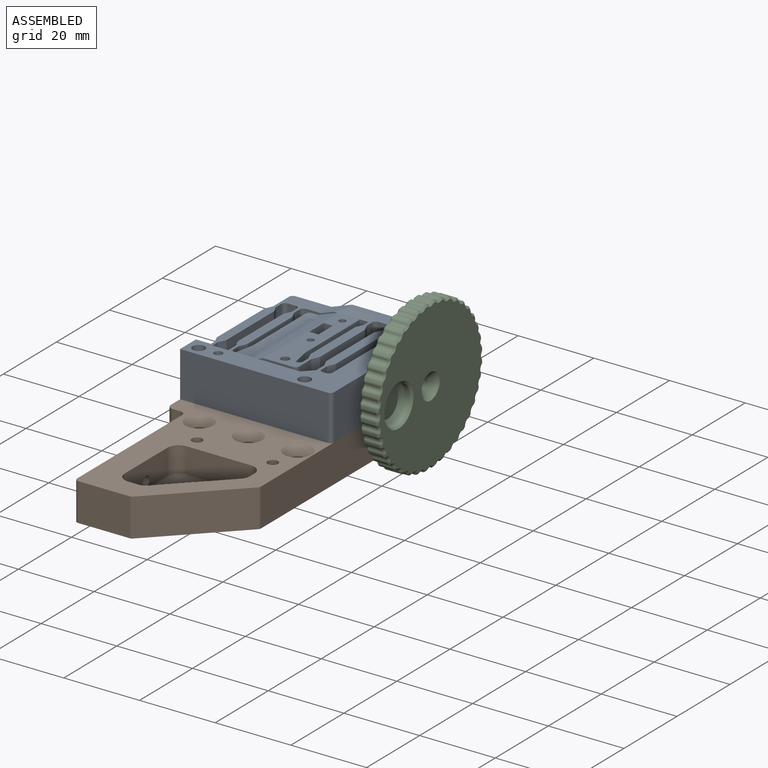
[diagram: assembled view]
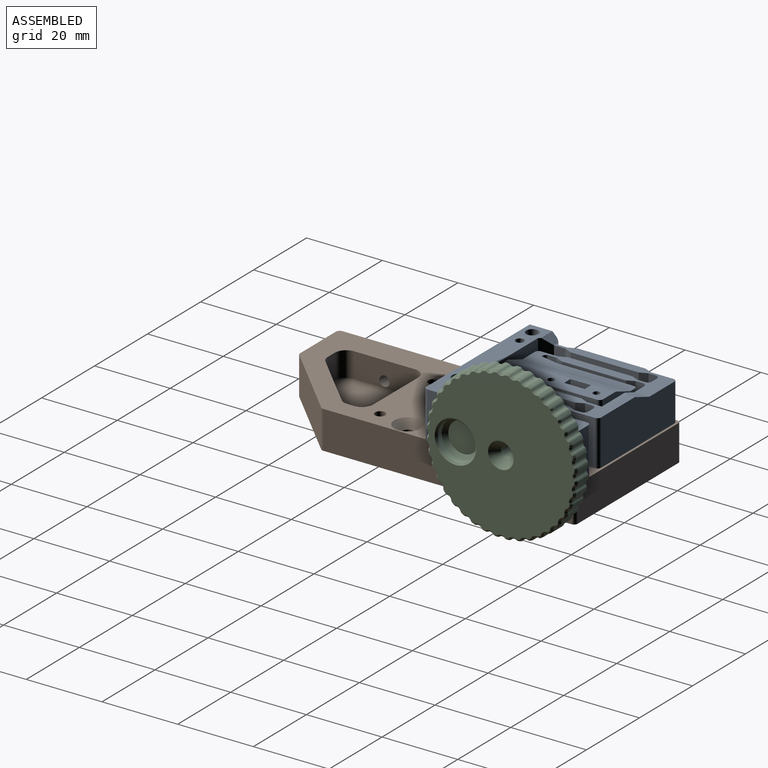
[diagram: assembled view, second angle]
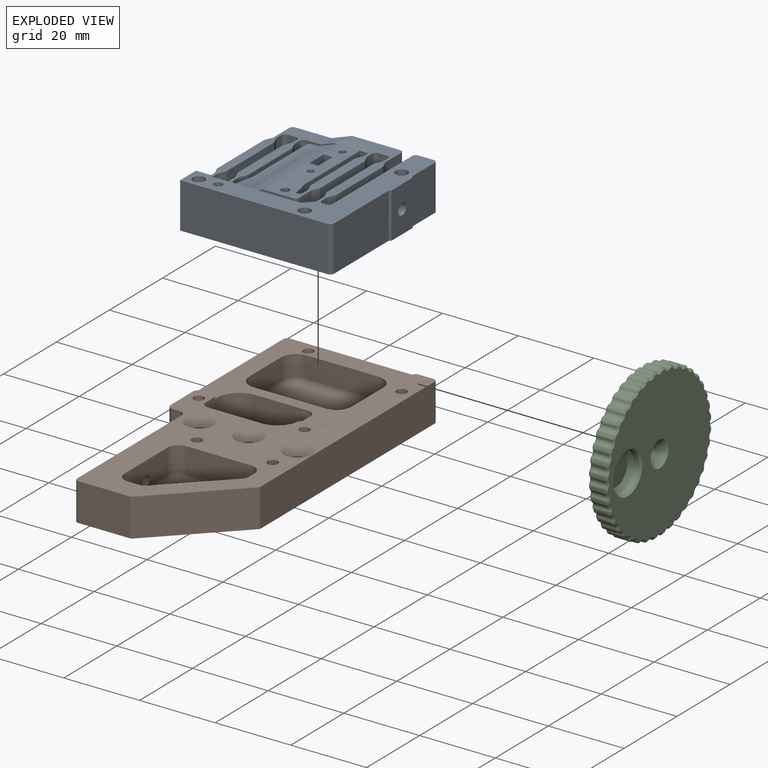
[diagram: exploded view]
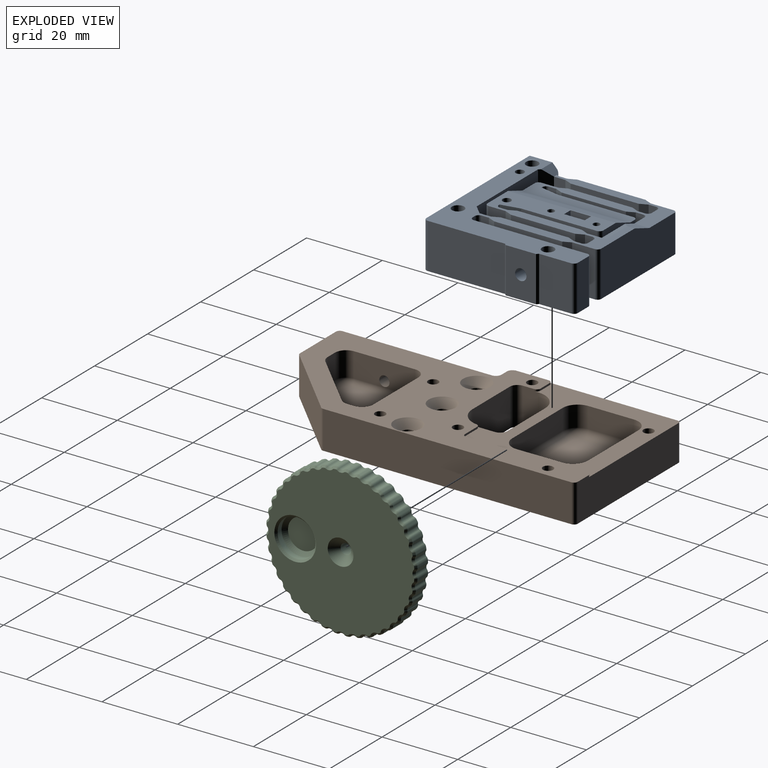
[diagram: exploded view, second angle]
FCSTD DOCUMENT  (FreeCAD 1.1R41365 (Git))
Label: ActuatorAssembly
License: All rights reserved
LicenseURL: https://en.wikipedia.org/wiki/All_rights_reserved
objects: App::Link×10, App::Point×2, App::FeaturePython×1, Assembly::JointGroup×1, Assembly::AssemblyLink×1, Assembly::AssemblyObject×1
EXTERNAL_REF file=FlexureStageBase.FCStd obj=Body
EXTERNAL_REF file=FlexureStage.FCStd obj=Body
EXTERNAL_REF file=LeadscrewWheel.FCStd obj=Body
EXTERNAL_REF file=FlexureAssembly.FCStd obj=Assembly
EXTERNAL_REF file=FlexureAssembly.FCStd obj=WireMount
EXTERNAL_REF file=FlexureAssembly.FCStd obj=WireMount001
EXTERNAL_REF file=FlexureAssembly.FCStd obj=FlexureWire
EXTERNAL_REF file=FlexureAssembly.FCStd obj=FlexureWire001
EXTERNAL_REF file=FlexureAssembly.FCStd obj=Rod
EXTERNAL_REF file=FlexureAssembly.FCStd obj=FlexureStiffener
EXTERNAL_REF file=FlexureAssembly.FCStd obj=WireMountFixture

FEATURE [App::Point] Origin001
  Role = Origin
FEATURE [App::Link] FlexureStageBase
  LinkPlacement = pos=(3.75918e-06,-42.5,2) rot=(0,0,1;3.14159rad)
  LinkedObject = -> <external FlexureStageBase.FCStd>#Body
  Placement = pos=(3.75918e-06,-42.5,2) rot=(0,0,1;3.14159rad)
FEATURE [App::Link] FlexureStage
  LinkPlacement = pos=(0,-19,19) rot=(0,1,0;3.14159rad)
  LinkedObject = -> <external FlexureStage.FCStd>#Body
  Placement = pos=(0,-19,19) rot=(0,1,0;3.14159rad)
FEATURE [App::Link] LeadscrewWheel
  LinkPlacement = pos=(23,-13,13) rot=(0,1,0;1.5708rad)
  LinkedObject = -> <external LeadscrewWheel.FCStd>#Body
  Placement = pos=(23,-13,13) rot=(0,1,0;1.5708rad)
FEATURE [App::FeaturePython] GroundedJoint  # Assembly grounded joint (typed FeaturePython)
  ObjectToGround = -> LeadscrewWheel
FEATURE [Assembly::JointGroup] Joints
  Group = -> [GroundedJoint]
FEATURE [App::Point] Origin003
  Role = Origin
FEATURE [App::Link] WireMount  label="WireMount1"
  LinkedObject = -> <external FlexureAssembly.FCStd>#WireMount
FEATURE [App::Link] WireMount001  label="WireMount2"
  LinkPlacement = pos=(0,-55,3) rot=(1,0,0;3.14159rad)
  LinkedObject = -> <external FlexureAssembly.FCStd>#WireMount001
  Placement = pos=(0,-55,3) rot=(1,0,0;3.14159rad)
FEATURE [App::Link] FlexureWire  label="FlexureWire1"
  LinkPlacement = pos=(8,3.5,1.5) rot=(0,0,1;0rad)
  LinkedObject = -> <external FlexureAssembly.FCStd>#FlexureWire
  Placement = pos=(8,3.5,1.5) rot=(0,0,1;0rad)
FEATURE [App::Link] FlexureWire001  label="FlexureWire2"
  LinkPlacement = pos=(-8.00001,3.5,1.5) rot=(0,0,1;0rad)
  LinkedObject = -> <external FlexureAssembly.FCStd>#FlexureWire001
  Placement = pos=(-8.00001,3.5,1.5) rot=(0,0,1;0rad)
FEATURE [App::Link] Rod  label="FlexureStiffener1"
  LinkPlacement = pos=(-8,-27.5,1.5) rot=(0,0,1;0rad)
  LinkedObject = -> <external FlexureAssembly.FCStd>#Rod
  Placement = pos=(-8,-27.5,1.5) rot=(0,0,1;0rad)
FEATURE [App::Link] FlexureStiffener  label="FlexureStiffener2"
  LinkPlacement = pos=(8,-27.5,1.5) rot=(0,0,1;0rad)
  LinkedObject = -> <external FlexureAssembly.FCStd>#FlexureStiffener
  Placement = pos=(8,-27.5,1.5) rot=(0,0,1;0rad)
FEATURE [App::Link] WireMountFixture
  LinkPlacement = pos=(0,-27.5,-5) rot=(0,0,1;0rad)
  LinkedObject = -> <external FlexureAssembly.FCStd>#WireMountFixture
  Placement = pos=(0,-27.5,-5) rot=(0,0,1;0rad)
FEATURE [Assembly::AssemblyLink] FlexureAssembly
  Group = -> [WireMount,WireMount001,FlexureWire,FlexureWire001,Rod,FlexureStiffener,WireMountFixture]
  LinkedObject = -> <external FlexureAssembly.FCStd>#Assembly
  Origin = -> Origin002
  Placement = pos=(-54.5,-13,22) rot=(0.707107,-0.707107,0;3.14159rad)
  Rigid = true
FEATURE [Assembly::AssemblyObject] Assembly  label="ActuatorAssembly"
  Group = -> [Joints,FlexureStageBase,FlexureStage,LeadscrewWheel,GroundedJoint,FlexureAssembly]
  Origin = -> Origin
  Type = Assembly

RESOLVED EXTERNAL PARTS (link-assembly join: the EXTERNAL_REF files above that resolve inside this repo's crawl, each included once):
---- part FlexureAssembly.FCStd = doc fcstd_80823ab9bab4 ----
FCSTD DOCUMENT  (FreeCAD 1.1R41365 (Git))
Label: FlexureAssembly
License: All rights reserved
LicenseURL: https://en.wikipedia.org/wiki/All_rights_reserved
objects: App::Link×7, App::Point×1, App::FeaturePython×1, Assembly::JointGroup×1, Assembly::AssemblyObject×1
EXTERNAL_REF file=WireMount.FCStd obj=Body
EXTERNAL_REF file=FlexureWire.FCStd obj=Body
EXTERNAL_REF file=FlexureStiffener.FCStd obj=Body
EXTERNAL_REF file=WireMountFixture.FCStd obj=Body

FEATURE [App::Point] Origin001
  Role = Origin
FEATURE [App::Link] WireMount  label="WireMount1"
  LinkedObject = -> <external WireMount.FCStd>#Body
FEATURE [App::FeaturePython] GroundedJoint  # Assembly grounded joint (typed FeaturePython)
  ObjectToGround = -> WireMount
FEATURE [Assembly::JointGroup] Joints
  Group = -> [GroundedJoint]
FEATURE [App::Link] WireMount001  label="WireMount2"
  LinkPlacement = pos=(0,-55,3) rot=(1,0,0;3.14159rad)
  LinkedObject = -> <external WireMount.FCStd>#Body
  Placement = pos=(0,-55,3) rot=(1,0,0;3.14159rad)
FEATURE [App::Link] FlexureWire  label="FlexureWire1"
  LinkPlacement = pos=(8,3.5,1.5) rot=(0,0,1;0rad)
  LinkedObject = -> <external FlexureWire.FCStd>#Body
  Placement = pos=(8,3.5,1.5) rot=(0,0,1;0rad)
FEATURE [App::Link] FlexureWire001  label="FlexureWire2"
  LinkPlacement = pos=(-8.00001,3.5,1.5) rot=(0,0,1;0rad)
  LinkedObject = -> <external FlexureWire.FCStd>#Body
  Placement = pos=(-8.00001,3.5,1.5) rot=(0,0,1;0rad)
FEATURE [App::Link] Rod  label="FlexureStiffener1"
  LinkPlacement = pos=(-8,-27.5,1.5) rot=(0,0,1;0rad)
  LinkedObject = -> <external FlexureStiffener.FCStd>#Body
  Placement = pos=(-8,-27.5,1.5) rot=(0,0,1;0rad)
FEATURE [App::Link] FlexureStiffener  label="FlexureStiffener2"
  LinkPlacement = pos=(8,-27.5,1.5) rot=(0,0,1;0rad)
  LinkedObject = -> <external FlexureStiffener.FCStd>#Body
  Placement = pos=(8,-27.5,1.5) rot=(0,0,1;0rad)
FEATURE [App::Link] WireMountFixture
  LinkPlacement = pos=(0,-27.5,-5) rot=(0,0,1;0rad)
  LinkedObject = -> <external WireMountFixture.FCStd>#Body
  Placement = pos=(0,-27.5,-5) rot=(0,0,1;0rad)
FEATURE [Assembly::AssemblyObject] Assembly  label="FlexureAssembly"
  Group = -> [Joints,WireMount,GroundedJoint,WireMount001,FlexureWire,FlexureWire001,Rod,FlexureStiffener,WireMountFixture]
  Origin = -> Origin
  Type = Assembly
---- part FlexureStage.FCStd = doc fcstd_34e32d88a024 ----
FCSTD DOCUMENT  (FreeCAD 1.1R41365 (Git))
Label: FlexureStage
License: All rights reserved
LicenseURL: https://en.wikipedia.org/wiki/All_rights_reserved
objects: Sketcher::SketchObject×20, PartDesign::Pocket×10, PartDesign::Pad×7, PartDesign::Chamfer×5, PartDesign::Fillet×2, App::Point×1, PartDesign::Body×1
note: 113 computed .brp shape members not serialized (recipe doc carries the construction recipe); baked Part::Feature solids carry a one-line shape summary decoded from their .brp

FEATURE [App::Point] Origin001
  Role = Origin
FEATURE [Sketcher::SketchObject] Sketch
  ArcFitTolerance = 1e-06
  AttachmentSupport = -> [XY_Plane]
  ExternalTypes = [0]
  FullyConstrained = true
  MakeInternals = false
  MapMode = 5
  sketch-geometry (5):
    g0: LineSegment StartX=20 StartY=-20 StartZ=0 EndX=20 EndY=20 EndZ=0
    g1: LineSegment StartX=20 StartY=20 StartZ=0 EndX=-20 EndY=20 EndZ=0
    g2: LineSegment StartX=-20 StartY=20 StartZ=0 EndX=-20 EndY=-20 EndZ=0
    g3: LineSegment StartX=-20 StartY=-20 StartZ=0 EndX=20 EndY=-20 EndZ=0
    g4: GeomPoint [constr] X=0 Y=0 Z=0
  constraints (12):
    c: Coincident(g0,g1)
    c: Coincident(g1,g2)
    c: Coincident(g2,g3)
    c: Coincident(g3,g0)
    c: Vertical(g0)
    c: Vertical(g2)
    c: Horizontal(g1)
    c: Horizontal(g3)
    c: Symmetric(g2,g0,g4)
    c: Coincident(g4,g-1)
    c: DistanceY(g2,g2) = 40
    c: DistanceX(g1,g1) = 40
FEATURE [PartDesign::Pad] Pad
  Direction = (0,0,1)
  Length = 12
  Length2 = 10
  Profile = -> Sketch
  ReferenceAxis = -> Sketch [N_Axis]
  Refine = true
  Suppressed = false
  Type = 0
FEATURE [Sketcher::SketchObject] Sketch002  label="FlexureTemplate_Single"
  ArcFitTolerance = 1e-06
  AttachmentSupport = -> [XY_Plane]
  ExternalTypes = [0]
  FullyConstrained = false
  MakeInternals = false
  MapMode = 5
  sketch-geometry (16):
    g0: LineSegment [constr] StartX=-4.75383 StartY=13.4505 StartZ=0 EndX=-4.75383 EndY=-15.4873 EndZ=0
    g1: LineSegment StartX=-5.12883 StartY=13.4505 StartZ=0 EndX=-5.12883 EndY=10.4505 EndZ=0
    g2: LineSegment StartX=-5.12883 StartY=10.4505 StartZ=0 EndX=-5.85677 EndY=8.4505 EndZ=0
    g3: LineSegment StartX=-5.85677 StartY=8.4505 StartZ=0 EndX=-5.85677 EndY=-10.4873 EndZ=0
    g4: LineSegment StartX=-5.85677 StartY=-10.4873 StartZ=0 EndX=-5.12883 EndY=-12.4873 EndZ=0
    g5: LineSegment StartX=-5.12883 StartY=-12.4873 StartZ=0 EndX=-5.12883 EndY=-15.4873 EndZ=0
    g6: LineSegment StartX=-5.12883 StartY=-15.4873 StartZ=0 EndX=-6.12883 EndY=-15.4873 EndZ=0
    g7: LineSegment StartX=-6.12883 StartY=-15.4873 StartZ=0 EndX=-6.12883 EndY=-12.6636 EndZ=0
    g8: LineSegment StartX=-6.12883 StartY=-12.6636 StartZ=0 EndX=-6.85677 EndY=-10.6636 EndZ=0
    g9: LineSegment StartX=-6.85677 StartY=-10.6636 StartZ=0 EndX=-6.85677 EndY=8.62683 EndZ=0
    g10: LineSegment StartX=-6.85677 StartY=8.62683 StartZ=0 EndX=-6.12883 EndY=10.6268 EndZ=0
    g11: LineSegment StartX=-6.12883 StartY=10.6268 StartZ=0 EndX=-6.12883 EndY=13.4505 EndZ=0
    g12: LineSegment StartX=-6.12883 StartY=13.4505 StartZ=0 EndX=-5.12883 EndY=13.4505 EndZ=0
    g13: LineSegment [constr] StartX=-6.85677 StartY=1.11063 StartZ=0 EndX=-5.85677 EndY=1.11063 EndZ=0
    g14: LineSegment [constr] StartX=-6.4928 StartY=9.62683 StartZ=0 EndX=-5.55311 EndY=9.28481 EndZ=0
    g15: LineSegment [constr] StartX=-6.43249 StartY=-11.8293 StartZ=0 EndX=-5.4928 EndY=-11.4873 EndZ=0
  constraints (46):
    c: Vertical(g0)
    c: Vertical(g1)
    c: Coincident(g3,g2)
    c: Vertical(g3)
    c: Coincident(g5,g4)
    c: Vertical(g5)
    c: Horizontal(g6)
    c: Vertical(g7)
    c: Vertical(g9)
    c: Coincident(g10,g9)
    c: Vertical(g11)
    c: Coincident(g12,g1)
    c: Horizontal(g12)
    c: Coincident(g6,g7)
    c: Coincident(g5,g6)
    c: Coincident(g8,g7)
    c: Coincident(g8,g9)
    c: Coincident(g4,g3)
    c: Coincident(g10,g11)
    c: Coincident(g1,g2)
    c: Coincident(g11,g12)
    c: Distance(g3,g9) = 1  'W'
    c: PointOnObject(g13,g9)
    c: PointOnObject(g13,g3)
    c: Horizontal(g13)
    c: Equal(g13,g12)
    c: Symmetric(g10,g10,g14)
    c: Perpendicular(g14,g2)
    c: Parallel(g10,g2)
    c: PointOnObject(g14,g2)
    c: Equal(g14,g13)
    c: Angle(g11,g10) = 2.79253
    c: PointOnObject(g15,g8)
    c: Perpendicular(g8,g15)
    c: Equal(g15,g13)
    c: PointOnObject(g0,g6)
    c: Equal(g5,g1)
    c: DistanceY(g1,g1) = 3
    c: Parallel(g8,g4)
    c: DistanceY(g2,g1) = 2
    c: Angle(g8,g9) = 2.79253
    c: Equal(g6,g13)
    c: Equal(g10,g8)
    c: PointOnObject(g0,g12)
    c: Distance(g0,g1) = 0.375
    c: Symmetric(g4,g4,g15)
FEATURE [Sketcher::SketchObject] Sketch003  label="FlexureTemplate"
  ArcFitTolerance = 1e-06
  AttachmentSupport = -> [XY_Plane]
  ExternalTypes = [0]
  FullyConstrained = false
  MakeInternals = false
  MapMode = 5
  sketch-geometry (31):
    g0: LineSegment [constr] StartX=-12.8857 StartY=17.8719 StartZ=0 EndX=-12.8857 EndY=-13.2264 EndZ=0
    g1: LineSegment StartX=-13.2607 StartY=17.8719 StartZ=0 EndX=-13.2607 EndY=14.8719 EndZ=0
    g2: LineSegment StartX=-13.2607 StartY=14.8719 StartZ=0 EndX=-13.9447 EndY=12.9925 EndZ=0
    g3: LineSegment StartX=-13.9447 StartY=12.9925 StartZ=0 EndX=-13.9447 EndY=-8.34701 EndZ=0
    g4: LineSegment StartX=-13.9447 StartY=-8.34701 StartZ=0 EndX=-13.2607 EndY=-10.2264 EndZ=0
    g5: LineSegment StartX=-13.2607 StartY=-10.2264 StartZ=0 EndX=-13.2607 EndY=-13.2264 EndZ=0
    g6: LineSegment StartX=-13.2607 StartY=-13.2264 StartZ=0 EndX=-14.2607 EndY=-13.2264 EndZ=0
    g7: LineSegment StartX=-14.2607 StartY=-13.2264 StartZ=0 EndX=-14.2607 EndY=-10.4027 EndZ=0
    g8: LineSegment StartX=-14.2607 StartY=-10.4027 StartZ=0 EndX=-14.9447 EndY=-8.52334 EndZ=0
    g9: LineSegment StartX=-14.9447 StartY=-8.52334 StartZ=0 EndX=-14.9447 EndY=13.1688 EndZ=0
    g10: LineSegment StartX=-14.9447 StartY=13.1688 StartZ=0 EndX=-14.2607 EndY=15.0482 EndZ=0
    g11: LineSegment StartX=-14.2607 StartY=15.0482 StartZ=0 EndX=-14.2607 EndY=17.8719 EndZ=0
    g12: LineSegment StartX=-14.2607 StartY=17.8719 StartZ=0 EndX=-13.2607 EndY=17.8719 EndZ=0
    g13: LineSegment [constr] StartX=-14.9447 StartY=3.34208 StartZ=0 EndX=-13.9447 EndY=3.34208 EndZ=0
    g14: LineSegment [constr] StartX=-14.6027 StartY=14.1085 StartZ=0 EndX=-13.663 EndY=13.7665 EndZ=0
    g15: LineSegment [constr] StartX=-14.5424 StartY=-9.62873 StartZ=0 EndX=-13.6027 EndY=-9.28671 EndZ=0
    g16: LineSegment StartX=-12.5107 StartY=17.8719 StartZ=0 EndX=-12.5107 EndY=14.8719 EndZ=0
    g17: LineSegment StartX=-12.5107 StartY=14.8719 StartZ=0 EndX=-11.8267 EndY=12.9925 EndZ=0
    g18: LineSegment StartX=-11.8267 StartY=12.9925 StartZ=0 EndX=-11.8267 EndY=-8.34701 EndZ=0
    g19: LineSegment StartX=-11.8267 StartY=-8.34701 StartZ=0 EndX=-12.5107 EndY=-10.2264 EndZ=0
    g20: LineSegment StartX=-12.5107 StartY=-10.2264 StartZ=0 EndX=-12.5107 EndY=-13.2264 EndZ=0
    g21: LineSegment StartX=-12.5107 StartY=-13.2264 StartZ=0 EndX=-11.5107 EndY=-13.2264 EndZ=0
    g22: LineSegment StartX=-11.5107 StartY=-13.2264 StartZ=0 EndX=-11.5107 EndY=-10.4027 EndZ=0
    g23: LineSegment StartX=-11.5107 StartY=-10.4027 StartZ=0 EndX=-10.8267 EndY=-8.52334 EndZ=0
    g24: LineSegment StartX=-10.8267 StartY=-8.52334 StartZ=0 EndX=-10.8267 EndY=13.1688 EndZ=0
    g25: LineSegment StartX=-10.8267 StartY=13.1688 StartZ=0 EndX=-11.5107 EndY=15.0482 EndZ=0
    g26: LineSegment StartX=-11.5107 StartY=15.0482 StartZ=0 EndX=-11.5107 EndY=17.8719 EndZ=0
    g27: LineSegment StartX=-11.5107 StartY=17.8719 StartZ=0 EndX=-12.5107 EndY=17.8719 EndZ=0
    g28: LineSegment [constr] StartX=-10.8267 StartY=3.34208 StartZ=0 EndX=-11.8267 EndY=3.34208 EndZ=0
    g29: LineSegment [constr] StartX=-11.1687 StartY=14.1085 StartZ=0 EndX=-12.1084 EndY=13.7665 EndZ=0
    g30: LineSegment [constr] StartX=-11.229 StartY=-9.62873 StartZ=0 EndX=-12.1687 EndY=-9.28671 EndZ=0
  constraints (76):
    c: Vertical(g0)
    c: Vertical(g1)
    c: Coincident(g3,g2)
    c: Vertical(g3)
    c: Coincident(g5,g4)
    c: Vertical(g5)
    c: Horizontal(g6)
    c: Vertical(g7)
    c: Vertical(g9)
    c: Coincident(g10,g9)
    c: Vertical(g11)
    c: Coincident(g12,g1)
    c: Horizontal(g12)
    c: Coincident(g6,g7)
    c: Coincident(g5,g6)
    c: Coincident(g8,g7)
    c: Coincident(g8,g9)
    c: Coincident(g4,g3)
    c: Coincident(g10,g11)
    c: Coincident(g1,g2)
    c: Coincident(g11,g12)
    c: Distance(g3,g9) = 1  'W'
    c: PointOnObject(g13,g9)
    c: PointOnObject(g13,g3)
    c: Horizontal(g13)
    c: Equal(g13,g12)
    c: Symmetric(g10,g10,g14)
    c: Perpendicular(g14,g2)
    c: Parallel(g10,g2)
    c: PointOnObject(g14,g2)
    c: Equal(g14,g13)
    c: Angle(g11,g10) = 2.79253
    c: PointOnObject(g15,g8)
    c: Perpendicular(g8,g15)
    c: Equal(g15,g13)
    c: PointOnObject(g0,g6)
    c: Equal(g5,g1)
    c: Parallel(g8,g4)
    c: Angle(g8,g9) = 2.79253
    c: Equal(g6,g13)
    c: Equal(g10,g8)
    c: PointOnObject(g0,g12)
    c: Distance(g0,g1) = 0.375
    c: Symmetric(g4,g4,g15)
    c: Distance(g2,g2) = 2
    c: DistanceY(g1,g1) = 3
    c: Symmetric(g1,g16,g0)
    c: Symmetric(g1,g16,g0)
    c: Symmetric(g2,g17,g0)
    c: Symmetric(g2,g17,g0)
    c: Symmetric(g3,g18,g0)
    c: Symmetric(g3,g18,g0)
    c: Symmetric(g4,g19,g0)
    c: Symmetric(g4,g19,g0)
    c: Symmetric(g5,g20,g0)
    c: Symmetric(g5,g20,g0)
    c: Symmetric(g6,g21,g0)
    c: Symmetric(g6,g21,g0)
    c: Symmetric(g7,g22,g0)
    c: Symmetric(g7,g22,g0)
    c: Symmetric(g8,g23,g0)
    c: Symmetric(g8,g23,g0)
    c: Symmetric(g9,g24,g0)
    c: Symmetric(g9,g24,g0)
    c: Symmetric(g10,g25,g0)
    c: Symmetric(g10,g25,g0)
    c: Symmetric(g11,g26,g0)
    c: Symmetric(g11,g26,g0)
    c: Symmetric(g12,g27,g0)
    c: Symmetric(g12,g27,g0)
    c: Symmetric(g13,g28,g0)
    c: Symmetric(g13,g28,g0)
    c: Symmetric(g14,g29,g0)
    c: Symmetric(g14,g29,g0)
    c: Symmetric(g15,g30,g0)
    c: Symmetric(g15,g30,g0)
FEATURE [Sketcher::SketchObject] Sketch004  label="BeamTemplate"
  ArcFitTolerance = 1e-06
  AttachmentSupport = -> [XY_Plane]
  ExternalTypes = [0]
  FullyConstrained = false
  MakeInternals = false
  MapMode = 5
  sketch-geometry (15):
    g0: LineSegment StartX=-27.8723 StartY=13.6132 StartZ=0 EndX=-27.8723 EndY=10.6132 EndZ=0
    g1: LineSegment StartX=-27.8723 StartY=10.6132 StartZ=0 EndX=-28.4973 EndY=8.61316 EndZ=0
    g2: LineSegment StartX=-28.4973 StartY=8.61316 StartZ=0 EndX=-28.4973 EndY=-8.18155 EndZ=0
    g3: LineSegment StartX=-28.4973 StartY=-8.18155 StartZ=0 EndX=-27.8723 EndY=-10.1816 EndZ=0
    g4: LineSegment StartX=-27.8723 StartY=-10.1816 StartZ=0 EndX=-27.8723 EndY=-13.1816 EndZ=0
    g5: LineSegment [constr] StartX=-27.4973 StartY=13.6132 StartZ=0 EndX=-27.4973 EndY=-13.1816 EndZ=0
    g6: LineSegment StartX=-27.1223 StartY=13.6132 StartZ=0 EndX=-27.1223 EndY=10.6132 EndZ=0
    g7: LineSegment StartX=-27.1223 StartY=10.6132 StartZ=0 EndX=-26.4973 EndY=8.61316 EndZ=0
    g8: LineSegment StartX=-26.4973 StartY=8.61316 StartZ=0 EndX=-26.4973 EndY=-8.18155 EndZ=0
    g9: LineSegment StartX=-26.4973 StartY=-8.18155 StartZ=0 EndX=-27.1223 EndY=-10.1816 EndZ=0
    g10: LineSegment StartX=-27.1223 StartY=-10.1816 StartZ=0 EndX=-27.1223 EndY=-13.1816 EndZ=0
    g11: LineSegment StartX=-27.8723 StartY=13.6132 StartZ=0 EndX=-27.1223 EndY=13.6132 EndZ=0
    g12: LineSegment [constr] StartX=-28.4973 StartY=8.61316 StartZ=0 EndX=-26.4973 EndY=8.61316 EndZ=0
    g13: GeomPoint [constr] X=-27.4973 Y=8.61316 Z=0
    g14: LineSegment StartX=-27.8723 StartY=-13.1816 StartZ=0 EndX=-27.1223 EndY=-13.1816 EndZ=0
  constraints (38):
    c: Vertical(g0)
    c: Coincident(g2,g1)
    c: Vertical(g2)
    c: Coincident(g4,g3)
    c: Vertical(g4)
    c: Coincident(g3,g2)
    c: Coincident(g0,g1)
    c: Equal(g4,g0)
    c: DistanceY(g0,g0) = 3
    c: DistanceY(g1,g0) = 2
    c: Vertical(g5)
    c: Vertical(g6)
    c: Coincident(g8,g7)
    c: Vertical(g8)
    c: Coincident(g10,g9)
    c: Vertical(g10)
    c: Coincident(g9,g8)
    c: Coincident(g6,g7)
    c: Equal(g10,g6)
    c: Distance(g5,g6) = 0.375
    c: Coincident(g11,g0)
    c: Coincident(g11,g6)
    c: Horizontal(g11)
    c: Distance(g8,g2) = 2
    c: Coincident(g12,g1)
    c: Coincident(g12,g7)
    c: Horizontal(g12)
    c: Symmetric(g12,g12,g13)
    c: PointOnObject(g13,g5)
    c: Coincident(g14,g4)
    c: Coincident(g14,g10)
    c: Symmetric(g14,g14,g5)
    c: Horizontal(g14)
    c: Horizontal(g3,g9)
    c: Horizontal(g2,g8)
    c: Equal(g3,g1)
    c: Equal(g14,g11)
    c: Symmetric(g11,g11,g5)
FEATURE [Sketcher::SketchObject] Sketch006
  ArcFitTolerance = 1e-06
  AttachmentSupport = -> [Pad]
  ExternalGeometry = -> [Pad]
  ExternalTypes = [0,0]
  FullyConstrained = true
  MakeInternals = false
  MapMode = 5
  Placement = pos=(0,0,12) rot=(0,0,1;0rad)
  sketch-geometry (4):
    g0: LineSegment StartX=-14 StartY=28 StartZ=0 EndX=-14 EndY=-12 EndZ=0
    g1: LineSegment StartX=-14 StartY=-12 StartZ=0 EndX=46 EndY=-12 EndZ=0
    g2: LineSegment StartX=46 StartY=-12 StartZ=0 EndX=46 EndY=28 EndZ=0
    g3: LineSegment StartX=46 StartY=28 StartZ=0 EndX=-14 EndY=28 EndZ=0
  constraints (12):
    c: Coincident(g0,g1)
    c: Coincident(g1,g2)
    c: Coincident(g2,g3)
    c: Coincident(g3,g0)
    c: Vertical(g0)
    c: Vertical(g2)
    c: Horizontal(g1)
    c: Horizontal(g3)
    c: Distance(g-4,g1) = 8
    c: Distance(g-3,g0) = 6
    c: DistanceX(g3,g3) = 60
    c: Distance(g2,g2) = 40
FEATURE [PartDesign::Pocket] Pocket
  BaseFeature = -> Pad
  Direction = (0,0,-1)
  Length = 5
  Length2 = 5
  Profile = -> Sketch006
  ReferenceAxis = -> Sketch006 [N_Axis]
  Refine = true
  Suppressed = false
  Type = 1
FEATURE [Sketcher::SketchObject] Sketch007  label="BeamTemplate001"
  ArcFitTolerance = 1e-06
  AttachmentSupport = -> [XY_Plane]
  ExternalGeometry = -> [Pocket]
  ExternalTypes = [0,0]
  FullyConstrained = true
  MakeInternals = false
  MapMode = 5
  sketch-geometry (30):
    g0: LineSegment StartX=17.75 StartY=16 StartZ=0 EndX=17.75 EndY=13 EndZ=0
    g1: LineSegment StartX=17.75 StartY=13 StartZ=0 EndX=16.875 EndY=11 EndZ=0
    g2: LineSegment StartX=16.875 StartY=11 StartZ=0 EndX=16.875 EndY=-7 EndZ=0
    g3: LineSegment StartX=16.875 StartY=-7 StartZ=0 EndX=17.75 EndY=-9 EndZ=0
    g4: LineSegment StartX=17.75 StartY=-9 StartZ=0 EndX=17.75 EndY=-12 EndZ=0
    g5: LineSegment [constr] StartX=18.125 StartY=16 StartZ=0 EndX=18.125 EndY=-12 EndZ=0
    g6: LineSegment StartX=18.5 StartY=16 StartZ=0 EndX=18.5 EndY=13 EndZ=0
    g7: LineSegment StartX=18.5 StartY=13 StartZ=0 EndX=19.375 EndY=11 EndZ=0
    g8: LineSegment StartX=19.375 StartY=11 StartZ=0 EndX=19.375 EndY=-7 EndZ=0
    g9: LineSegment StartX=19.375 StartY=-7 StartZ=0 EndX=18.5 EndY=-9 EndZ=0
    g10: LineSegment StartX=18.5 StartY=-9 StartZ=0 EndX=18.5 EndY=-12 EndZ=0
    g11: LineSegment StartX=17.75 StartY=16 StartZ=0 EndX=18.5 EndY=16 EndZ=0
    g12: LineSegment [constr] StartX=16.875 StartY=11 StartZ=0 EndX=19.375 EndY=11 EndZ=0
    g13: GeomPoint [constr] X=18.125 Y=11 Z=0
    g14: LineSegment StartX=17.75 StartY=-12 StartZ=0 EndX=18.5 EndY=-12 EndZ=0
    g15: LineSegment StartX=-11.125 StartY=16 StartZ=0 EndX=-11.125 EndY=13 EndZ=0
    g16: LineSegment StartX=-11.125 StartY=13 StartZ=0 EndX=-12 EndY=11 EndZ=0
    g17: LineSegment StartX=-12 StartY=11 StartZ=0 EndX=-12 EndY=-7 EndZ=0
    g18: LineSegment StartX=-12 StartY=-7 StartZ=0 EndX=-11.125 EndY=-9 EndZ=0
    g19: LineSegment StartX=-11.125 StartY=-9 StartZ=0 EndX=-11.125 EndY=-12 EndZ=0
    g20: LineSegment [constr] StartX=-10.75 StartY=16 StartZ=0 EndX=-10.75 EndY=-12 EndZ=0
    g21: LineSegment StartX=-10.375 StartY=16 StartZ=0 EndX=-10.375 EndY=13 EndZ=0
    g22: LineSegment StartX=-10.375 StartY=13 StartZ=0 EndX=-9.5 EndY=11 EndZ=0
    g23: LineSegment StartX=-9.5 StartY=11 StartZ=0 EndX=-9.5 EndY=-7 EndZ=0
    g24: LineSegment StartX=-9.5 StartY=-7 StartZ=0 EndX=-10.375 EndY=-9 EndZ=0
    g25: LineSegment StartX=-10.375 StartY=-9 StartZ=0 EndX=-10.375 EndY=-12 EndZ=0
    g26: LineSegment StartX=-11.125 StartY=16 StartZ=0 EndX=-10.375 EndY=16 EndZ=0
    g27: LineSegment [constr] StartX=-12 StartY=11 StartZ=0 EndX=-9.5 EndY=11 EndZ=0
    g28: GeomPoint [constr] X=-10.75 Y=11 Z=0
    g29: LineSegment StartX=-11.125 StartY=-12 StartZ=0 EndX=-10.375 EndY=-12 EndZ=0
  constraints (82):
    c: Vertical(g0)
    c: Coincident(g2,g1)
    c: Vertical(g2)
    c: Coincident(g4,g3)
    c: Vertical(g4)
    c: Coincident(g3,g2)
    c: Coincident(g0,g1)
    c: Equal(g4,g0)
    c: DistanceY(g0,g0) = 3
    c: DistanceY(g1,g0) = 2
    c: Vertical(g5)
    c: Vertical(g6)
    c: Coincident(g8,g7)
    c: Vertical(g8)
    c: Coincident(g10,g9)
    c: Vertical(g10)
    c: Coincident(g9,g8)
    c: Coincident(g6,g7)
    c: Equal(g10,g6)
    c: Distance(g5,g6) = 0.375
    c: Coincident(g11,g0)
    c: Coincident(g11,g6)
    c: Horizontal(g11)
    c: Distance(g8,g2) = 2.5
    c: Coincident(g12,g1)
    c: Coincident(g12,g7)
    c: Horizontal(g12)
    c: Symmetric(g12,g12,g13)
    c: PointOnObject(g13,g5)
    c: Coincident(g14,g4)
    c: Coincident(g14,g10)
    c: Symmetric(g14,g14,g5)
    c: Horizontal(g14)
    c: Horizontal(g3,g9)
    c: Horizontal(g2,g8)
    c: Equal(g3,g1)
    c: Equal(g14,g11)
    c: PointOnObject(g5,g-3)
    c: Symmetric(g11,g11,g5)
    c: DistanceY(g5,g5) = 28
    c: Vertical(g15)
    c: Coincident(g17,g16)
    c: Vertical(g17)
    c: Coincident(g19,g18)
    c: Vertical(g19)
    c: Coincident(g18,g17)
    c: Coincident(g15,g16)
    c: Equal(g19,g15)
    c: DistanceY(g15,g15) = 3
    c: DistanceY(g16,g15) = 2
    c: Vertical(g20)
    c: Vertical(g21)
    c: Coincident(g23,g22)
    c: Vertical(g23)
    c: Coincident(g25,g24)
    c: Vertical(g25)
    c: Coincident(g24,g23)
    c: Coincident(g21,g22)
    c: Equal(g25,g21)
    c: Distance(g20,g21) = 0.375
    c: Coincident(g26,g15)
    c: Coincident(g26,g21)
    c: Horizontal(g26)
    c: Distance(g23,g17) = 2.5
    c: Coincident(g27,g16)
    c: Coincident(g27,g22)
    c: Horizontal(g27)
    c: Symmetric(g27,g27,g28)
    c: PointOnObject(g28,g20)
    c: Coincident(g29,g19)
    c: Coincident(g29,g25)
    c: Symmetric(g29,g29,g20)
    c: Horizontal(g29)
    c: Horizontal(g18,g24)
    c: Horizontal(g17,g23)
    c: Equal(g18,g16)
    c: Equal(g29,g26)
    c: Symmetric(g26,g26,g20)
    c: DistanceY(g20,g20) = 28
    c: Distance(g-4,g17) = 2
    c: PointOnObject(g25,g-3)
    c: Distance(g10,g-3) = 1.5
FEATURE [PartDesign::Pad] Pad001
  BaseFeature = -> Pocket
  Direction = (0,0,1)
  Length = 12
  Length2 = 10
  Profile = -> Sketch007
  ReferenceAxis = -> Sketch007 [N_Axis]
  Refine = true
  Suppressed = false
  Type = 0
FEATURE [Sketcher::SketchObject] Sketch008
  ArcFitTolerance = 1e-06
  AttachmentSupport = -> [Pad001]
  ExternalGeometry = -> [Pad001]
  ExternalTypes = [0,0]
  FullyConstrained = true
  MakeInternals = false
  MapMode = 5
  Placement = pos=(0,0,12) rot=(0,0,1;0rad)
  sketch-geometry (4):
    g0: LineSegment StartX=-11.125 StartY=16 StartZ=0 EndX=18.5 EndY=16 EndZ=0
    g1: LineSegment StartX=18.5 StartY=16 StartZ=0 EndX=18.5 EndY=20 EndZ=0
    g2: LineSegment StartX=18.5 StartY=20 StartZ=0 EndX=-11.125 EndY=20 EndZ=0
    g3: LineSegment StartX=-11.125 StartY=20 StartZ=0 EndX=-11.125 EndY=16 EndZ=0
  constraints (10):
    c: Coincident(g0,g1)
    c: Coincident(g1,g2)
    c: Coincident(g2,g3)
    c: Coincident(g3,g0)
    c: Horizontal(g2)
    c: Vertical(g1)
    c: Vertical(g3)
    c: Coincident(g0,g-3)
    c: Coincident(g0,g-4)
    c: DistanceY(g3,g3) = 4
FEATURE [PartDesign::Pad] Pad002
  BaseFeature = -> Pad001
  Direction = (0,0,1)
  Length = 12
  Length2 = 10
  Profile = -> Sketch008
  ReferenceAxis = -> Sketch008 [N_Axis]
  Refine = true
  Reversed = true
  Suppressed = false
  Type = 0
FEATURE [Sketcher::SketchObject] Sketch009  label="BeamTemplate002"
  ArcFitTolerance = 1e-06
  AttachmentSupport = -> [XY_Plane]
  ExternalGeometry = -> [Pad002]
  ExternalTypes = [0]
  FullyConstrained = true
  MakeInternals = false
  MapMode = 5
  sketch-geometry (30):
    g0: LineSegment StartX=12.875 StartY=16 StartZ=0 EndX=12.875 EndY=13 EndZ=0
    g1: LineSegment StartX=12.875 StartY=13 StartZ=0 EndX=12 EndY=11 EndZ=0
    g2: LineSegment StartX=12 StartY=11 StartZ=0 EndX=12 EndY=-6 EndZ=0
    g3: LineSegment StartX=12 StartY=-6 StartZ=0 EndX=12.875 EndY=-8 EndZ=0
    g4: LineSegment StartX=12.875 StartY=-8 StartZ=0 EndX=12.875 EndY=-11 EndZ=0
    g5: LineSegment [constr] StartX=13.25 StartY=16 StartZ=0 EndX=13.25 EndY=-11 EndZ=0
    g6: LineSegment StartX=13.625 StartY=16 StartZ=0 EndX=13.625 EndY=13 EndZ=0
    g7: LineSegment StartX=13.625 StartY=13 StartZ=0 EndX=14.5 EndY=11 EndZ=0
    g8: LineSegment StartX=14.5 StartY=11 StartZ=0 EndX=14.5 EndY=-6 EndZ=0
    g9: LineSegment StartX=14.5 StartY=-6 StartZ=0 EndX=13.625 EndY=-8 EndZ=0
    g10: LineSegment StartX=13.625 StartY=-8 StartZ=0 EndX=13.625 EndY=-11 EndZ=0
    g11: LineSegment StartX=12.875 StartY=16 StartZ=0 EndX=13.625 EndY=16 EndZ=0
    g12: LineSegment [constr] StartX=12 StartY=11 StartZ=0 EndX=14.5 EndY=11 EndZ=0
    g13: GeomPoint [constr] X=13.25 Y=11 Z=0
    g14: LineSegment StartX=12.875 StartY=-11 StartZ=0 EndX=13.625 EndY=-11 EndZ=0
    g15: LineSegment StartX=-6.25 StartY=16 StartZ=0 EndX=-6.25 EndY=13 EndZ=0
    g16: LineSegment StartX=-6.25 StartY=13 StartZ=0 EndX=-7.125 EndY=11 EndZ=0
    g17: LineSegment StartX=-7.125 StartY=11 StartZ=0 EndX=-7.125 EndY=-6 EndZ=0
    g18: LineSegment StartX=-7.125 StartY=-6 StartZ=0 EndX=-6.25 EndY=-8 EndZ=0
    g19: LineSegment StartX=-6.25 StartY=-8 StartZ=0 EndX=-6.25 EndY=-11 EndZ=0
    g20: LineSegment [constr] StartX=-5.875 StartY=16 StartZ=0 EndX=-5.875 EndY=-11 EndZ=0
    g21: LineSegment StartX=-5.5 StartY=16 StartZ=0 EndX=-5.5 EndY=13 EndZ=0
    g22: LineSegment StartX=-5.5 StartY=13 StartZ=0 EndX=-4.625 EndY=11 EndZ=0
    g23: LineSegment StartX=-4.625 StartY=11 StartZ=0 EndX=-4.625 EndY=-6 EndZ=0
    g24: LineSegment StartX=-4.625 StartY=-6 StartZ=0 EndX=-5.5 EndY=-8 EndZ=0
    g25: LineSegment StartX=-5.5 StartY=-8 StartZ=0 EndX=-5.5 EndY=-11 EndZ=0
    g26: LineSegment StartX=-6.25 StartY=16 StartZ=0 EndX=-5.5 EndY=16 EndZ=0
    g27: LineSegment [constr] StartX=-7.125 StartY=11 StartZ=0 EndX=-4.625 EndY=11 EndZ=0
    g28: GeomPoint [constr] X=-5.875 Y=11 Z=0
    g29: LineSegment StartX=-6.25 StartY=-11 StartZ=0 EndX=-5.5 EndY=-11 EndZ=0
  constraints (82):
    c: Vertical(g0)
    c: Coincident(g2,g1)
    c: Vertical(g2)
    c: Coincident(g4,g3)
    c: Vertical(g4)
    c: Coincident(g3,g2)
    c: Coincident(g0,g1)
    c: Equal(g4,g0)
    c: DistanceY(g0,g0) = 3
    c: DistanceY(g1,g0) = 2
    c: Vertical(g5)
    c: Vertical(g6)
    c: Coincident(g8,g7)
    c: Vertical(g8)
    c: Coincident(g10,g9)
    c: Vertical(g10)
    c: Coincident(g9,g8)
    c: Coincident(g6,g7)
    c: Equal(g10,g6)
    c: Distance(g5,g6) = 0.375
    c: Coincident(g11,g0)
    c: Coincident(g11,g6)
    c: Horizontal(g11)
    c: Distance(g8,g2) = 2.5
    c: Coincident(g12,g1)
    c: Coincident(g12,g7)
    c: Horizontal(g12)
    c: Symmetric(g12,g12,g13)
    c: PointOnObject(g13,g5)
    c: Coincident(g14,g4)
    c: Coincident(g14,g10)
    c: Symmetric(g14,g14,g5)
    c: Horizontal(g14)
    c: Horizontal(g3,g9)
    c: Horizontal(g2,g8)
    c: Equal(g3,g1)
    c: Equal(g14,g11)
    c: Symmetric(g11,g11,g5)
    c: PointOnObject(g5,g-3)
    c: DistanceY(g5,g5) = 27
    c: Vertical(g15)
    c: Coincident(g17,g16)
    c: Vertical(g17)
    c: Coincident(g19,g18)
    c: Vertical(g19)
    c: Coincident(g18,g17)
    c: Coincident(g15,g16)
    c: Equal(g19,g15)
    c: DistanceY(g15,g15) = 3
    c: DistanceY(g16,g15) = 2
    c: Vertical(g20)
    c: Vertical(g21)
    c: Coincident(g23,g22)
    c: Vertical(g23)
    c: Coincident(g25,g24)
    c: Vertical(g25)
    c: Coincident(g24,g23)
    c: Coincident(g21,g22)
    c: Equal(g25,g21)
    c: Distance(g20,g21) = 0.375
    c: Coincident(g26,g15)
    c: Coincident(g26,g21)
    c: Horizontal(g26)
    c: Distance(g23,g17) = 2.5
    c: Coincident(g27,g16)
    c: Coincident(g27,g22)
    c: Horizontal(g27)
    c: Symmetric(g27,g27,g28)
    c: PointOnObject(g28,g20)
    c: Coincident(g29,g19)
    c: Coincident(g29,g25)
    c: Symmetric(g29,g29,g20)
    c: Horizontal(g29)
    c: Horizontal(g18,g24)
    c: Horizontal(g17,g23)
    c: Equal(g18,g16)
    c: Equal(g29,g26)
    c: Symmetric(g26,g26,g20)
    c: DistanceY(g20,g20) = 27
    c: Distance(g-3,g20) = 4.5
    c: DistanceX(g5,g-3) = 4.5
    c: PointOnObject(g20,g-3)
FEATURE [PartDesign::Pad] Pad003
  BaseFeature = -> Pad002
  Direction = (0,0,1)
  Length = 12
  Length2 = 10
  Profile = -> Sketch009
  ReferenceAxis = -> Sketch009 [N_Axis]
  Refine = true
  Suppressed = false
  Type = 0
FEATURE [Sketcher::SketchObject] Sketch010
  ArcFitTolerance = 1e-06
  AttachmentSupport = -> [Pad003]
  ExternalGeometry = -> [Pad003]
  ExternalTypes = [0]
  FullyConstrained = true
  MakeInternals = false
  MapMode = 5
  Placement = pos=(0,0,12) rot=(0,0,1;0rad)
  sketch-geometry (4):
    g0: LineSegment StartX=-10.375 StartY=-12 StartZ=0 EndX=-7.875 EndY=-14.5 EndZ=0
    g1: LineSegment StartX=-7.875 StartY=-14.5 StartZ=0 EndX=15.25 EndY=-14.5 EndZ=0
    g2: LineSegment StartX=15.25 StartY=-14.5 StartZ=0 EndX=17.75 EndY=-12 EndZ=0
    g3: LineSegment StartX=17.75 StartY=-12 StartZ=0 EndX=-10.375 EndY=-12 EndZ=0
  constraints (10):
    c: Coincident(g1,g0)
    c: Horizontal(g1)
    c: Coincident(g2,g1)
    c: Coincident(g3,g2)
    c: Coincident(g3,g0)
    c: Angle(g0,g3) = 0.785398
    c: Angle(g3,g2) = 0.785398
    c: Distance(g1,g3) = 2.5
    c: Coincident(g2,g-3)
    c: Coincident(g0,g-3)
FEATURE [PartDesign::Pocket] Pocket001
  BaseFeature = -> Pad003
  Direction = (0,0,-1)
  Length = 5
  Length2 = 5
  Profile = -> Sketch010
  ReferenceAxis = -> Sketch010 [N_Axis]
  Refine = true
  Suppressed = false
  Type = 1
FEATURE [Sketcher::SketchObject] Sketch011
  ArcFitTolerance = 1e-06
  AttachmentSupport = -> [Pocket001]
  ExternalGeometry = -> [Pocket001]
  ExternalTypes = [0,0,0]
  FullyConstrained = true
  MakeInternals = false
  MapMode = 5
  Placement = pos=(0,0,12) rot=(0,0,1;0rad)
  sketch-geometry (8):
    g0: LineSegment StartX=-6.25 StartY=-11 StartZ=0 EndX=-6.25 EndY=-13.5 EndZ=0
    g1: LineSegment StartX=-6.25 StartY=-13.5 StartZ=0 EndX=13.625 EndY=-13.5 EndZ=0
    g2: LineSegment StartX=13.625 StartY=-13.5 StartZ=0 EndX=13.625 EndY=-11 EndZ=0
    g3: LineSegment StartX=13.625 StartY=-11 StartZ=0 EndX=10.625 EndY=-11 EndZ=0
    g4: LineSegment StartX=-3.25 StartY=15 StartZ=0 EndX=-3.25 EndY=-11 EndZ=0
    g5: LineSegment StartX=10.625 StartY=-11 StartZ=0 EndX=10.625 EndY=15 EndZ=0
    g6: LineSegment StartX=10.625 StartY=15 StartZ=0 EndX=-3.25 EndY=15 EndZ=0
    g7: LineSegment StartX=-3.25 StartY=-11 StartZ=0 EndX=-6.25 EndY=-11 EndZ=0
  constraints (22):
    c: Coincident(g0,g1)
    c: Coincident(g1,g2)
    c: Coincident(g7,g0)
    c: Vertical(g0)
    c: Vertical(g2)
    c: Horizontal(g1)
    c: Coincident(g0,g-4)
    c: DistanceY(g0,g0) = 2.5
    c: Coincident(g5,g6)
    c: Coincident(g6,g4)
    c: Vertical(g4)
    c: Vertical(g5)
    c: Horizontal(g6)
    c: Coincident(g5,g3)
    c: Coincident(g7,g4)
    c: Horizontal(g7)
    c: Horizontal(g3)
    c: Equal(g7,g3)
    c: DistanceX(g7,g7) = 3
    c: DistanceY(g5,g5) = 26
    c: Coincident(g3,g2)
    c: Coincident(g2,g-5)
FEATURE [PartDesign::Pad] Pad004
  BaseFeature = -> Pocket001
  Direction = (0,0,1)
  Length = 12
  Length2 = 10
  Profile = -> Sketch011
  ReferenceAxis = -> Sketch011 [N_Axis]
  Refine = true
  Reversed = true
  Suppressed = false
  Type = 0
FEATURE [PartDesign::Chamfer] Chamfer
  Angle = 45
  Base = -> Pad004 [Edge171]
  BaseFeature = -> Pad004
  ChamferType = 1
  FlipDirection = false
  Refine = true
  Size = 1
  Size2 = 5
  SupportTransform = false
  Suppressed = false
  UseAllEdges = false
FEATURE [PartDesign::Chamfer] Chamfer001
  Angle = 45
  Base = -> Chamfer [Edge71]
  BaseFeature = -> Chamfer
  ChamferType = 1
  FlipDirection = false
  Refine = true
  Size = 5
  Size2 = 1
  SupportTransform = false
  Suppressed = false
  UseAllEdges = false
FEATURE [Sketcher::SketchObject] Sketch013
  ArcFitTolerance = 1e-06
  AttachmentSupport = -> [Chamfer001]
  ExternalTypes = [0]
  FullyConstrained = true
  MakeInternals = false
  MapMode = 5
  Placement = pos=(-20,0,0) rot=(0.57735,-0.57735,-0.57735;2.0944rad)
  sketch-geometry (1):
    g0: Circle CenterX=-6 CenterY=6 CenterZ=0 NormalX=0 NormalY=0 NormalZ=1 AngleXU=0 Radius=1.5
  constraints (3):
    c: DistanceY(g-1,g0) = 6
    c: Diameter(g0) = 3
    c: DistanceX(g0,g-1) = 6
FEATURE [PartDesign::Pocket] Pocket003
  BaseFeature = -> Chamfer001
  Direction = (1,0,0)
  Length = 16
  Length2 = 5
  Profile = -> Sketch013
  ReferenceAxis = -> Sketch013 [N_Axis]
  Refine = true
  Suppressed = false
  Type = 0
FEATURE [Sketcher::SketchObject] Sketch015
  ArcFitTolerance = 1e-06
  AttachmentSupport = -> [Pocket003]
  ExternalGeometry = -> [Pocket003]
  ExternalTypes = [0]
  FullyConstrained = true
  MakeInternals = false
  MapMode = 5
  Placement = pos=(-12,0,0) rot=(0.57735,-0.57735,-0.57735;2.0944rad)
  sketch-geometry (1):
    g0: Circle CenterX=-6 CenterY=6 CenterZ=0 NormalX=0 NormalY=0 NormalZ=1 AngleXU=0 Radius=2.5
  constraints (2):
    c: Diameter(g0) = 5
    c: Coincident(g0,g-3)
FEATURE [PartDesign::Pocket] Pocket004
  BaseFeature = -> Pocket003
  Direction = (1,0,0)
  Length = 8
  Length2 = 5
  Profile = -> Sketch015
  ReferenceAxis = -> Sketch015 [N_Axis]
  Refine = true
  Suppressed = false
  Type = 0
FEATURE [Sketcher::SketchObject] Sketch016
  ArcFitTolerance = 1e-06
  AttachmentSupport = -> [Pocket004]
  ExternalGeometry = -> [Pocket004]
  ExternalTypes = [0]
  FullyConstrained = true
  MakeInternals = false
  MapMode = 5
  Placement = pos=(0,0,12) rot=(0,0,1;0rad)
  sketch-geometry (3):
    g0: Circle CenterX=-11 CenterY=-17.25 CenterZ=0 NormalX=0 NormalY=0 NormalZ=1 AngleXU=0 Radius=1.6
    g1: Circle CenterX=17 CenterY=-17.25 CenterZ=0 NormalX=0 NormalY=0 NormalZ=1 AngleXU=0 Radius=1.6
    g2: Circle CenterX=-17 CenterY=10.75 CenterZ=0 NormalX=0 NormalY=0 NormalZ=1 AngleXU=0 Radius=1.6
  constraints (9):
    c: DistanceY(g0,g-1) = 17.25
    c: Horizontal(g1,g0)
    c: DistanceX(g0,g1) = 28
    c: Diameter(g0) = 3.2
    c: Equal(g2,g0)
    c: DistanceX(g2,g0) = 6
    c: DistanceY(g0,g2) = 28
    c: Equal(g1,g0)
    c: DistanceX(g0,g-1) = 11
FEATURE [PartDesign::Pocket] Pocket005  label="MountHoles1"
  BaseFeature = -> Pocket004
  Direction = (0,0,-1)
  Length = 5
  Length2 = 5
  Profile = -> Sketch016
  ReferenceAxis = -> Sketch016 [N_Axis]
  Refine = true
  Suppressed = false
  Type = 1
FEATURE [Sketcher::SketchObject] Sketch021
  ArcFitTolerance = 1e-06
  AttachmentSupport = -> [Pocket005]
  ExternalGeometry = -> [Pocket005]
  ExternalTypes = [0]
  FullyConstrained = true
  MakeInternals = false
  MapMode = 5
  Placement = pos=(0,0,1.2e-15) rot=(1,0,0;3.14159rad)
  sketch-geometry (4):
    g0: Circle CenterX=-0.5 CenterY=0 CenterZ=0 NormalX=0 NormalY=0 NormalZ=1 AngleXU=0 Radius=0.875
    g1: Circle CenterX=-0.5 CenterY=-12 CenterZ=0 NormalX=0 NormalY=0 NormalZ=1 AngleXU=0 Radius=0.875
    g2: LineSegment [constr] StartX=-0.5 StartY=0 StartZ=0 EndX=-0.5 EndY=-12 EndZ=0
    g3: GeomPoint [constr] X=-0.5 Y=-6 Z=0
  constraints (9):
    c: Vertical(g1,g0)
    c: Equal(g0,g1)
    c: Diameter(g0) = 1.75
    c: Coincident(g2,g1)
    c: Symmetric(g2,g2,g3)
    c: DistanceY(g2,g2) = 12
    c: Distance(g3,g-1) = 6
    c: Coincident(g0,g2)
    c: Distance(g2,g-3) = 2.75
FEATURE [PartDesign::Pocket] Pocket009  label="FlexureMountHoles"
  BaseFeature = -> Pocket005
  Direction = (0,0,1)
  Length = 8
  Length2 = 5
  Profile = -> Sketch021
  ReferenceAxis = -> Sketch021 [N_Axis]
  Refine = true
  Suppressed = false
  Type = 0
FEATURE [Sketcher::SketchObject] Sketch023
  ArcFitTolerance = 1e-06
  AttachmentSupport = -> [Pocket009]
  ExternalTypes = [0]
  FullyConstrained = true
  MakeInternals = false
  MapMode = 5
  Placement = pos=(0,0,1.2e-15) rot=(1,0,0;3.14159rad)
  sketch-geometry (6):
    g0: LineSegment StartX=2.15 StartY=-8.725 StartZ=0 EndX=2.15 EndY=-3.275 EndZ=0
    g1: LineSegment StartX=2.15 StartY=-3.275 StartZ=0 EndX=-0.25 EndY=-3.275 EndZ=0
    g2: LineSegment StartX=-0.25 StartY=-3.275 StartZ=0 EndX=-0.25 EndY=-8.725 EndZ=0
    g3: LineSegment StartX=-0.25 StartY=-8.725 StartZ=0 EndX=2.15 EndY=-8.725 EndZ=0
    g4: GeomPoint [constr] X=0.95 Y=-6 Z=0
    g5: GeomPoint X=-0.25 Y=-6 Z=0
  constraints (14):
    c: Coincident(g0,g1)
    c: Coincident(g1,g2)
    c: Coincident(g2,g3)
    c: Coincident(g3,g0)
    c: Vertical(g0)
    c: Vertical(g2)
    c: Horizontal(g1)
    c: Horizontal(g3)
    c: Symmetric(g2,g0,g4)
    c: DistanceX(g3,g3) = 2.4
    c: DistanceY(g0,g0) = 5.45
    c: Symmetric(g2,g2,g5)
    c: DistanceY(g5,g-1) = 6
    c: Distance(g-3,g2) = 2
FEATURE [PartDesign::Pocket] Pocket010
  BaseFeature = -> Pocket009
  Direction = (0,0,1)
  Length = 5
  Length2 = 5
  Profile = -> Sketch023
  ReferenceAxis = -> Sketch023 [N_Axis]
  Refine = true
  Suppressed = false
  Type = 1
FEATURE [Sketcher::SketchObject] Sketch024
  ArcFitTolerance = 1e-06
  AttachmentSupport = -> [Pocket010]
  ExternalTypes = [0]
  FullyConstrained = false
  MakeInternals = false
  MapMode = 5
  Placement = pos=(2.15,0,0) rot=(0.57735,-0.57735,-0.57735;2.0944rad)
  sketch-geometry (2):
    g0: Circle CenterX=-6 CenterY=6 CenterZ=0 NormalX=0 NormalY=0 NormalZ=1 AngleXU=0 Radius=1.75
    g1: LineSegment [constr] StartX=-6 StartY=6 StartZ=0 EndX=-6 EndY=10 EndZ=0
  constraints (5):
    c: Coincident(g1,g0)
    c: Vertical(g1)
    c: Diameter(g0) = 3.5
    c: DistanceY(g-1,g0) = 6
    c: Distance(g0,g-2) = 6
FEATURE [PartDesign::Pocket] Pocket011
  BaseFeature = -> Pocket010
  Direction = (1,0,0)
  Length = 15
  Length2 = 5
  Midplane = true
  Profile = -> Sketch024
  ReferenceAxis = -> Sketch024 [N_Axis]
  Refine = true
  Suppressed = false
  Type = 0
FEATURE [Sketcher::SketchObject] Sketch025
  ArcFitTolerance = 1e-06
  AttachmentSupport = -> [Pocket011]
  ExternalTypes = [0]
  FullyConstrained = true
  MakeInternals = false
  MapMode = 5
  Placement = pos=(0,0,1.2e-15) rot=(1,0,0;3.14159rad)
  sketch-geometry (2):
    g0: Circle CenterX=12 CenterY=17 CenterZ=0 NormalX=0 NormalY=0 NormalZ=1 AngleXU=0 Radius=1.1
    g1: Circle CenterX=-1.5 CenterY=11 CenterZ=0 NormalX=0 NormalY=0 NormalZ=1 AngleXU=0 Radius=1.1
  constraints (6):
    c: Diameter(g0) = 2.2
    c: Diameter(g1) = 2.2
    c: DistanceY(g-1,g0) = 17
    c: DistanceX(g-1,g0) = 12
    c: DistanceX(g1,g-1) = 1.5
    c: DistanceY(g-1,g1) = 11
FEATURE [PartDesign::Pocket] Pocket012
  BaseFeature = -> Pocket011
  Direction = (0,0,1)
  Length = 5
  Length2 = 5
  Profile = -> Sketch025
  ReferenceAxis = -> Sketch025 [N_Axis]
  Refine = true
  Suppressed = false
  Type = 1
FEATURE [PartDesign::Fillet] Fillet
  Base = -> Pocket012 [Edge74,Edge77,Edge83,Edge110,Edge106,Edge80]
  BaseFeature = -> Pocket012
  Radius = 1
  Refine = true
  SupportTransform = false
  Suppressed = false
  UseAllEdges = false
FEATURE [PartDesign::Chamfer] Chamfer003
  Angle = 20
  Base = -> Fillet [Edge70]
  BaseFeature = -> Fillet
  ChamferType = 2
  FlipDirection = false
  Refine = true
  Size = 2
  Size2 = 1
  SupportTransform = false
  Suppressed = false
  UseAllEdges = false
FEATURE [PartDesign::Fillet] Fillet001
  Base = -> Chamfer003 [Edge100,Edge147,Edge110,Edge113,Edge117,Edge183,Edge82,Edge181,Edge90,Edge228,Edge233,Edge208,Edge204,Edge152,Edge137]
  BaseFeature = -> Chamfer003
  Radius = 1
  Refine = true
  SupportTransform = false
  Suppressed = false
  UseAllEdges = false
FEATURE [Sketcher::SketchObject] Sketch026
  ArcFitTolerance = 1e-06
  AttachmentSupport = -> [Fillet001]
  ExternalTypes = [0]
  FullyConstrained = false
  MakeInternals = false
  MapMode = 5
  Placement = pos=(0,0,12) rot=(0,0,1;0rad)
  sketch-geometry (6):
    g0: LineSegment StartX=-15.4564 StartY=15.8775 StartZ=0 EndX=-14.7799 EndY=16.4091 EndZ=0
    g1: LineSegment StartX=-14.7799 StartY=16.4091 StartZ=0 EndX=-10.7209 EndY=16.4735 EndZ=0
    g2: LineSegment StartX=-10.7209 StartY=16.4735 StartZ=0 EndX=-10.7209 EndY=16.9084 EndZ=0
    g3: LineSegment StartX=-10.7209 StartY=16.9084 StartZ=0 EndX=-14.651 EndY=16.844 EndZ=0
    g4: LineSegment StartX=-14.651 StartY=16.844 StartZ=0 EndX=-15.0698 EndY=17.3272 EndZ=0
    g5: LineSegment StartX=-15.0698 StartY=17.3272 StartZ=0 EndX=-15.4564 EndY=15.8775 EndZ=0
  constraints (6):
    c: Coincident(g2,g1)
    c: Coincident(g3,g2)
    c: Coincident(g4,g3)
    c: Coincident(g5,g4)
    c: Coincident(g5,g0)
    c: Coincident(g0,g1)
FEATURE [PartDesign::Pad] Pad005  label="BrimStop"
  BaseFeature = -> Fillet001
  Direction = (0,0,1)
  Length = 0.2
  Length2 = 10
  Profile = -> Sketch026
  ReferenceAxis = -> Sketch026 [N_Axis]
  Refine = true
  Reversed = true
  Suppressed = false
  Type = 0
FEATURE [Sketcher::SketchObject] Sketch030
  ArcFitTolerance = 1e-06
  AttachmentSupport = -> [Pad005]
  ExternalTypes = [0]
  FullyConstrained = true
  MakeInternals = false
  MapMode = 5
  Placement = pos=(0,20,0) rot=(0,0.707107,0.707107;3.14159rad)
  sketch-geometry (4):
    g0: LineSegment StartX=-22.5 StartY=2 StartZ=0 EndX=-22.5 EndY=0 EndZ=0
    g1: LineSegment StartX=-22.5 StartY=0 StartZ=0 EndX=-2.5 EndY=0 EndZ=0
    g2: LineSegment StartX=-8 StartY=2 StartZ=0 EndX=-22.5 EndY=2 EndZ=0
    g3: LineSegment StartX=-8 StartY=2 StartZ=0 EndX=-2.5 EndY=0 EndZ=0
  constraints (12):
    c: Coincident(g0,g1)
    c: Coincident(g2,g0)
    c: Vertical(g0)
    c: Horizontal(g1)
    c: PointOnObject(g1,g-1)
    c: DistanceY(g0,g0) = 2
    c: Coincident(g3,g1)
    c: Horizontal(g2)
    c: Coincident(g3,g2)
    c: DistanceX(g2,g-1) = 8
    c: DistanceX(g1,g-1) = 2.5
    c: DistanceX(g1,g1) = 20
FEATURE [PartDesign::Pocket] Pocket014
  BaseFeature = -> Pad005
  Direction = (0,-1,2e-16)
  Length = 34
  Length2 = 5
  Profile = -> Sketch030
  ReferenceAxis = -> Sketch030 [N_Axis]
  Refine = true
  Suppressed = false
  Type = 0
FEATURE [PartDesign::Chamfer] Chamfer002
  Angle = 45
  Base = -> Pocket014 [Edge133]
  BaseFeature = -> Pocket014
  ChamferType = 0
  FlipDirection = false
  Refine = true
  Size = 1.99
  Size2 = 1
  SupportTransform = false
  Suppressed = false
  UseAllEdges = false
FEATURE [Sketcher::SketchObject] Sketch031
  ArcFitTolerance = 1e-06
  AttachmentSupport = -> [Chamfer002]
  ExternalGeometry = -> [Chamfer002]
  ExternalTypes = [0]
  FullyConstrained = true
  MakeInternals = false
  MapMode = 5
  Placement = pos=(-20,0,0) rot=(0.57735,-0.57735,-0.57735;2.0944rad)
  sketch-geometry (5):
    g0: LineSegment StartX=-2 StartY=0 StartZ=0 EndX=-2 EndY=12 EndZ=0
    g1: LineSegment StartX=-2 StartY=12 StartZ=0 EndX=-10 EndY=12 EndZ=0
    g2: LineSegment StartX=-10 StartY=12 StartZ=0 EndX=-10 EndY=0 EndZ=0
    g3: LineSegment StartX=-10 StartY=0 StartZ=0 EndX=-2 EndY=0 EndZ=0
    g4: LineSegment [constr] StartX=-6 StartY=12 StartZ=0 EndX=-6 EndY=6 EndZ=0
  constraints (14):
    c: Coincident(g0,g1)
    c: Coincident(g1,g2)
    c: Coincident(g2,g3)
    c: Coincident(g3,g0)
    c: Vertical(g0)
    c: Vertical(g2)
    c: Horizontal(g1)
    c: Horizontal(g3)
    c: PointOnObject(g0,g-1)
    c: DistanceY(g0,g0) = 12
    c: DistanceX(g3,g3) = 8
    c: Symmetric(g1,g1,g4)
    c: Coincident(g4,g-3)
    c: Vertical(g4)
FEATURE [PartDesign::Pad] Pad006
  BaseFeature = -> Chamfer002
  Direction = (-1,0,0)
  Length = 0.5
  Length2 = 10
  Profile = -> Sketch031
  ReferenceAxis = -> Sketch031 [N_Axis]
  Refine = true
  Suppressed = false
  Type = 0
FEATURE [PartDesign::Chamfer] Chamfer004
  Angle = 45
  Base = -> Pad006 [Edge143,Edge150]
  BaseFeature = -> Pad006
  ChamferType = 0
  FlipDirection = false
  Refine = true
  Size = 0.49
  Size2 = 1
  SupportTransform = false
  Suppressed = false
  UseAllEdges = false
FEATURE [PartDesign::Body] Body  label="FlexureStage"
  AllowCompound = false
  Group = -> [Sketch,Pad,Sketch002,Sketch003,Sketch004,Sketch006,Pocket,Sketch007,Pad001,Sketch008,Pad002,Sketch009,Pad003,Sketch010,Pocket001,Sketch011,Pad004,Chamfer,Chamfer001,Sketch013,Pocket003,Sketch015,Pocket004,Sketch016,Pocket005,Sketch021,Pocket009,Sketch023,Pocket010,Sketch024,Pocket011,Sketch025,Pocket012,Fillet,Chamfer003,Fillet001,Sketch026,Pad005,Sketch030,Pocket014,Chamfer002,Sketch031,Pad006,+1 more]
  Origin = -> Origin
  Tip = -> Chamfer004
---- part FlexureStageBase.FCStd = doc fcstd_38acdf32986b ----
FCSTD DOCUMENT  (FreeCAD 1.1R41365 (Git))
Label: FlexureStageBase
License: All rights reserved
LicenseURL: https://en.wikipedia.org/wiki/All_rights_reserved
objects: Sketcher::SketchObject×11, PartDesign::Pocket×10, PartDesign::Fillet×9, PartDesign::Chamfer×2, App::Point×1, PartDesign::Pad×1, PartDesign::Body×1
note: 89 computed .brp shape members not serialized (recipe doc carries the construction recipe); baked Part::Feature solids carry a one-line shape summary decoded from their .brp

FEATURE [App::Point] Origin001
  Role = Origin
FEATURE [Sketcher::SketchObject] Sketch
  ArcFitTolerance = 1e-06
  AttachmentSupport = -> [XY_Plane]
  ExternalTypes = [0]
  FullyConstrained = true
  MakeInternals = false
  MapMode = 5
  sketch-geometry (5):
    g0: LineSegment StartX=-20 StartY=-43.5 StartZ=0 EndX=20 EndY=-43.5 EndZ=0
    g1: LineSegment StartX=20 StartY=-43.5 StartZ=0 EndX=20 EndY=43.5 EndZ=0
    g2: LineSegment StartX=20 StartY=43.5 StartZ=0 EndX=-20 EndY=43.5 EndZ=0
    g3: LineSegment StartX=-20 StartY=43.5 StartZ=0 EndX=-20 EndY=-43.5 EndZ=0
    g4: GeomPoint [constr] X=0 Y=0 Z=0
  constraints (12):
    c: Coincident(g0,g1)
    c: Coincident(g1,g2)
    c: Coincident(g2,g3)
    c: Coincident(g3,g0)
    c: Horizontal(g0)
    c: Horizontal(g2)
    c: Vertical(g1)
    c: Vertical(g3)
    c: Symmetric(g2,g0,g4)
    c: Coincident(g4,g-1)
    c: DistanceX(g0,g0) = 40
    c: DistanceY(g1,g1) = 87
FEATURE [PartDesign::Pad] Pad
  Direction = (0,0,1)
  Length = 10
  Length2 = 10
  Midplane = true
  Profile = -> Sketch
  ReferenceAxis = -> Sketch [N_Axis]
  Refine = true
  Suppressed = false
  Type = 0
FEATURE [Sketcher::SketchObject] Sketch001
  ArcFitTolerance = 1e-06
  AttachmentSupport = -> [Pad]
  ExternalGeometry = -> [Pad]
  ExternalTypes = [0]
  FullyConstrained = false
  MakeInternals = false
  MapMode = 5
  Placement = pos=(0,0,5) rot=(0,0,1;0rad)
  sketch-geometry (3):
    g0: Circle CenterX=17 CenterY=-6.25 CenterZ=0 NormalX=0 NormalY=0 NormalZ=1 AngleXU=0 Radius=1.35
    g1: Circle CenterX=-11 CenterY=-6.25 CenterZ=0 NormalX=0 NormalY=0 NormalZ=1 AngleXU=0 Radius=1.35
    g2: Circle CenterX=-17 CenterY=-34.25 CenterZ=0 NormalX=0 NormalY=0 NormalZ=1 AngleXU=0 Radius=1.35
  constraints (7):
    c: Equal(g2,g0)
    c: DistanceY(g-3,g0) = 37.25
    c: DistanceX(g0,g-3) = 3
    c: DistanceX(g1,g0) = 28
    c: Horizontal(g1,g0)
    c: DistanceX(g2,g-3) = 37
    c: DistanceY(g-3,g2) = 9.25
FEATURE [PartDesign::Pocket] Pocket
  BaseFeature = -> Pad
  Direction = (0,0,-1)
  Length = 5
  Length2 = 5
  Profile = -> Sketch001
  ReferenceAxis = -> Sketch001 [N_Axis]
  Refine = true
  Suppressed = false
  Type = 1
FEATURE [Sketcher::SketchObject] Sketch009
  ArcFitTolerance = 1e-06
  AttachmentSupport = -> [Pocket]
  ExternalTypes = [0]
  FullyConstrained = true
  MakeInternals = false
  MapMode = 5
  Placement = pos=(0,0,5) rot=(0,0,1;0rad)
  sketch-geometry (3):
    g0: Circle CenterX=-16 CenterY=3.5 CenterZ=0 NormalX=0 NormalY=0 NormalZ=1 AngleXU=0 Radius=1.6
    g1: Circle CenterX=-3 CenterY=3.5 CenterZ=0 NormalX=0 NormalY=0 NormalZ=1 AngleXU=0 Radius=1.6
    g2: Circle CenterX=10 CenterY=3.5 CenterZ=0 NormalX=0 NormalY=0 NormalZ=1 AngleXU=0 Radius=1.6
  constraints (9):
    c: Diameter(g0) = 3.2
    c: DistanceX(g0,g-3) = 36
    c: DistanceY(g0,g-3) = 40
    c: Equal(g1,g0)
    c: Equal(g0,g2)
    c: Horizontal(g1,g0)
    c: Horizontal(g1,g2)
    c: DistanceX(g0,g2) = 26
    c: DistanceX(g0,g1) = 13
FEATURE [PartDesign::Pocket] Pocket007
  BaseFeature = -> Pocket
  Direction = (0,0,-1)
  Length = 5
  Length2 = 5
  Profile = -> Sketch009
  ReferenceAxis = -> Sketch009 [N_Axis]
  Refine = true
  Suppressed = false
  Type = 1
FEATURE [Sketcher::SketchObject] Sketch010
  ArcFitTolerance = 1e-06
  AttachmentSupport = -> [Pocket007]
  ExternalGeometry = -> [Pocket007]
  ExternalTypes = [0]
  FullyConstrained = true
  MakeInternals = false
  MapMode = 5
  Placement = pos=(0,0,5) rot=(0,0,1;0rad)
  sketch-geometry (4):
    g0: LineSegment StartX=20 StartY=43.5 StartZ=0 EndX=15 EndY=43.5 EndZ=0
    g1: LineSegment StartX=15 StartY=43.5 StartZ=0 EndX=15 EndY=1.5 EndZ=0
    g2: LineSegment StartX=15 StartY=1.5 StartZ=0 EndX=20 EndY=1.5 EndZ=0
    g3: LineSegment StartX=20 StartY=1.5 StartZ=0 EndX=20 EndY=43.5 EndZ=0
  constraints (11):
    c: Coincident(g0,g1)
    c: Coincident(g1,g2)
    c: Coincident(g2,g3)
    c: Coincident(g3,g0)
    c: Horizontal(g0)
    c: Horizontal(g2)
    c: Vertical(g1)
    c: Vertical(g3)
    c: Coincident(g0,g-3)
    c: DistanceX(g0,g0) = 5
    c: DistanceY(g3,g3) = 42
FEATURE [PartDesign::Pocket] Pocket008
  BaseFeature = -> Pocket007
  Direction = (0,0,-1)
  Length = 5
  Length2 = 5
  Profile = -> Sketch010
  ReferenceAxis = -> Sketch010 [N_Axis]
  Refine = true
  Suppressed = false
  Type = 1
FEATURE [PartDesign::Chamfer] Chamfer
  Angle = 45
  Base = -> Pocket008 [Edge28,Edge26,Edge25]
  BaseFeature = -> Pocket008
  ChamferType = 0
  FlipDirection = false
  Refine = true
  Size = 2
  Size2 = 1
  SupportTransform = false
  Suppressed = false
  UseAllEdges = false
FEATURE [PartDesign::Fillet] Fillet
  Base = -> Chamfer [Edge22,Edge20]
  BaseFeature = -> Chamfer
  Radius = 1.5
  Refine = true
  SupportTransform = false
  Suppressed = false
  UseAllEdges = false
FEATURE [PartDesign::Chamfer] Chamfer001
  Angle = 45
  Base = -> Fillet [Edge21]
  BaseFeature = -> Fillet
  ChamferType = 1
  FlipDirection = false
  Refine = true
  Size = 20
  Size2 = 20
  SupportTransform = false
  Suppressed = false
  UseAllEdges = false
FEATURE [Sketcher::SketchObject] Sketch011
  ArcFitTolerance = 1e-06
  AttachmentSupport = -> [Chamfer001]
  ExternalGeometry = -> [Chamfer001]
  ExternalTypes = [0]
  FullyConstrained = true
  MakeInternals = false
  MapMode = 5
  Placement = pos=(0,0,5) rot=(0,0,1;0rad)
  sketch-geometry (4):
    g0: LineSegment StartX=-7.5 StartY=-3.5 StartZ=0 EndX=-7.5 EndY=-15.5 EndZ=0
    g1: LineSegment StartX=-7.5 StartY=-15.5 StartZ=0 EndX=14.5 EndY=-15.5 EndZ=0
    g2: LineSegment StartX=14.5 StartY=-15.5 StartZ=0 EndX=14.5 EndY=-3.5 EndZ=0
    g3: LineSegment StartX=14.5 StartY=-3.5 StartZ=0 EndX=-7.5 EndY=-3.5 EndZ=0
  constraints (12):
    c: Coincident(g0,g1)
    c: Coincident(g1,g2)
    c: Coincident(g2,g3)
    c: Coincident(g3,g0)
    c: Vertical(g0)
    c: Vertical(g2)
    c: Horizontal(g1)
    c: Horizontal(g3)
    c: DistanceY(g0,g0) = 12
    c: DistanceX(g1,g1) = 22
    c: Distance(g-3,g2) = 5.5
    c: Distance(g-3,g1) = 28
FEATURE [PartDesign::Pocket] Pocket009
  BaseFeature = -> Chamfer001
  Direction = (0,0,-1)
  Length = 12
  Length2 = 5
  Profile = -> Sketch011
  ReferenceAxis = -> Sketch011 [N_Axis]
  Refine = true
  Suppressed = false
  Type = 0
FEATURE [PartDesign::Fillet] Fillet001
  Base = -> Pocket009 [Edge48,Edge49]
  BaseFeature = -> Pocket009
  Radius = 6
  Refine = true
  SupportTransform = false
  Suppressed = false
  UseAllEdges = false
FEATURE [Sketcher::SketchObject] Sketch012
  ArcFitTolerance = 1e-06
  AttachmentSupport = -> [Fillet001]
  ExternalGeometry = -> [Fillet001]
  ExternalTypes = [0]
  FullyConstrained = true
  MakeInternals = false
  MapMode = 5
  Placement = pos=(0,0,5) rot=(0,0,1;0rad)
  sketch-geometry (4):
    g0: LineSegment StartX=-12 StartY=-18.5 StartZ=0 EndX=-12 EndY=-38.5 EndZ=0
    g1: LineSegment StartX=-12 StartY=-38.5 StartZ=0 EndX=15 EndY=-38.5 EndZ=0
    g2: LineSegment StartX=15 StartY=-38.5 StartZ=0 EndX=15 EndY=-18.5 EndZ=0
    g3: LineSegment StartX=15 StartY=-18.5 StartZ=0 EndX=-12 EndY=-18.5 EndZ=0
  constraints (12):
    c: Coincident(g0,g1)
    c: Coincident(g1,g2)
    c: Coincident(g2,g3)
    c: Coincident(g3,g0)
    c: Vertical(g0)
    c: Vertical(g2)
    c: Horizontal(g1)
    c: Horizontal(g3)
    c: Distance(g-3,g2) = 5
    c: Distance(g-3,g1) = 5
    c: DistanceX(g1,g1) = 27
    c: DistanceY(g2,g2) = 20
FEATURE [PartDesign::Fillet] Fillet009
  Base = -> Fillet001 [Edge29,Edge23]
  BaseFeature = -> Fillet001
  Radius = 2
  Refine = true
  SupportTransform = false
  Suppressed = false
  UseAllEdges = false
FEATURE [PartDesign::Pocket] Pocket010
  BaseFeature = -> Fillet009
  Direction = (0,0,-1)
  Length = 8
  Length2 = 5
  Profile = -> Sketch012
  ReferenceAxis = -> Sketch012 [N_Axis]
  Refine = true
  Suppressed = false
  Type = 0
FEATURE [PartDesign::Fillet] Fillet002
  Base = -> Pocket010 [Edge48,Edge49,Edge51,Edge53]
  BaseFeature = -> Pocket010
  Radius = 4
  Refine = true
  SupportTransform = false
  Suppressed = false
  UseAllEdges = false
FEATURE [PartDesign::Fillet] Fillet003
  Base = -> Fillet002 [Edge34]
  BaseFeature = -> Fillet002
  Radius = 2
  Refine = true
  SupportTransform = false
  Suppressed = false
  UseAllEdges = false
FEATURE [Sketcher::SketchObject] Sketch013
  ArcFitTolerance = 1e-06
  AttachmentSupport = -> [Fillet003]
  ExternalGeometry = -> [Fillet003]
  ExternalTypes = [0,0]
  FullyConstrained = true
  MakeInternals = false
  MapMode = 5
  Placement = pos=(0,0,5) rot=(0,0,1;0rad)
  sketch-geometry (5):
    g0: LineSegment StartX=-15 StartY=21.4289 StartZ=0 EndX=1.07107 EndY=37.5 EndZ=0
    g1: LineSegment StartX=1.07107 StartY=37.5 StartZ=0 EndX=8 EndY=37.5 EndZ=0
    g2: LineSegment StartX=8 StartY=37.5 StartZ=0 EndX=8 EndY=15.4289 EndZ=0
    g3: LineSegment StartX=8 StartY=15.4289 StartZ=0 EndX=-15 EndY=15.4289 EndZ=0
    g4: LineSegment StartX=-15 StartY=15.4289 StartZ=0 EndX=-15 EndY=21.4289 EndZ=0
  constraints (15):
    c: Horizontal(g1)
    c: Vertical(g2)
    c: Coincident(g3,g2)
    c: Horizontal(g3)
    c: Coincident(g4,g3)
    c: Coincident(g4,g0)
    c: Vertical(g4)
    c: Coincident(g1,g2)
    c: Distance(g-3,g2) = 7
    c: Distance(g-3,g1) = 6
    c: Coincident(g1,g0)
    c: Parallel(g0,g-4)
    c: Distance(g-4,g0) = 5
    c: Distance(g-4,g4) = 5
    c: DistanceY(g4,g4) = 6
FEATURE [PartDesign::Pocket] Pocket011
  BaseFeature = -> Fillet003
  Direction = (0,0,-1)
  Length = 8
  Length2 = 5
  Profile = -> Sketch013
  ReferenceAxis = -> Sketch013 [N_Axis]
  Refine = true
  Suppressed = false
  Type = 0
FEATURE [PartDesign::Fillet] Fillet004
  Base = -> Pocket011 [Edge109,Edge110,Edge112,Edge114,Edge116]
  BaseFeature = -> Pocket011
  Radius = 3
  Refine = true
  SupportTransform = false
  Suppressed = false
  UseAllEdges = false
FEATURE [PartDesign::Fillet] Fillet005
  Base = -> Fillet004 [Edge50]
  BaseFeature = -> Fillet004
  Radius = 1.5
  Refine = true
  SupportTransform = false
  Suppressed = false
  UseAllEdges = false
FEATURE [Sketcher::SketchObject] Sketch014
  ArcFitTolerance = 1e-06
  AttachmentSupport = -> [Fillet005]
  ExternalGeometry = -> [Fillet005]
  ExternalTypes = [0]
  FullyConstrained = true
  MakeInternals = false
  MapMode = 5
  Placement = pos=(0,0,5) rot=(0,0,1;0rad)
  sketch-geometry (2):
    g0: Circle CenterX=-15 CenterY=11.5 CenterZ=0 NormalX=0 NormalY=0 NormalZ=1 AngleXU=0 Radius=1.35
    g1: Circle CenterX=5 CenterY=11.5 CenterZ=0 NormalX=0 NormalY=0 NormalZ=1 AngleXU=0 Radius=1.35
  constraints (6):
    c: Equal(g1,g0)
    c: Diameter(g0) = 2.7
    c: Horizontal(g0,g1)
    c: DistanceY(g0,g-3) = 32
    c: DistanceX(g0,g-3) = 30
    c: DistanceX(g0,g1) = 20
FEATURE [PartDesign::Pocket] Pocket012
  BaseFeature = -> Fillet005
  Direction = (0,0,-1)
  Length = 5
  Length2 = 5
  Profile = -> Sketch014
  ReferenceAxis = -> Sketch014 [N_Axis]
  Refine = true
  Suppressed = false
  Type = 1
FEATURE [Sketcher::SketchObject] Sketch015
  ArcFitTolerance = 1e-06
  AttachmentSupport = -> [Pocket012]
  ExternalGeometry = -> [Pocket012]
  ExternalTypes = [0]
  FullyConstrained = true
  MakeInternals = false
  MapMode = 5
  Placement = pos=(0,0,-5) rot=(1,0,0;3.14159rad)
  sketch-geometry (1):
    g0: Circle CenterX=12 CenterY=40.5 CenterZ=0 NormalX=0 NormalY=0 NormalZ=1 AngleXU=0 Radius=1.35
  constraints (3):
    c: Diameter(g0) = 2.7
    c: DistanceX(g-3,g0) = 32
    c: DistanceY(g0,g-3) = 3
FEATURE [PartDesign::Pocket] Pocket013
  BaseFeature = -> Pocket012
  Direction = (0,0,1)
  Length = 5
  Length2 = 5
  Profile = -> Sketch015
  ReferenceAxis = -> Sketch015 [N_Axis]
  Refine = true
  Suppressed = false
  Type = 1
FEATURE [Sketcher::SketchObject] Sketch016
  ArcFitTolerance = 1e-06
  AttachmentSupport = -> [Pocket013]
  ExternalGeometry = -> [Pocket013]
  ExternalTypes = [0]
  FullyConstrained = true
  MakeInternals = false
  MapMode = 5
  Placement = pos=(0,0,5) rot=(0,0,1;0rad)
  sketch-geometry (4):
    g0: LineSegment StartX=20 StartY=-43.5 StartZ=0 EndX=20 EndY=-9.5 EndZ=0
    g1: LineSegment StartX=20 StartY=-9.5 StartZ=0 EndX=-14 EndY=-9.5 EndZ=0
    g2: LineSegment StartX=-14 StartY=-9.5 StartZ=0 EndX=-14 EndY=-43.5 EndZ=0
    g3: LineSegment StartX=-14 StartY=-43.5 StartZ=0 EndX=20 EndY=-43.5 EndZ=0
  constraints (11):
    c: Coincident(g0,g1)
    c: Coincident(g1,g2)
    c: Coincident(g2,g3)
    c: Coincident(g3,g0)
    c: Vertical(g0)
    c: Vertical(g2)
    c: Horizontal(g1)
    c: Horizontal(g3)
    c: Coincident(g0,g-3)
    c: DistanceY(g0,g0) = 34
    c: DistanceX(g3,g3) = 34
FEATURE [PartDesign::Pocket] Pocket014
  BaseFeature = -> Pocket013
  Direction = (0,0,-1)
  Length = 0.5
  Length2 = 5
  Profile = -> Sketch016
  ReferenceAxis = -> Sketch016 [N_Axis]
  Refine = true
  Suppressed = false
  Type = 0
FEATURE [Sketcher::SketchObject] Sketch017
  ArcFitTolerance = 1e-06
  AttachmentSupport = -> [Pocket014]
  ExternalGeometry = -> [Pocket014]
  ExternalTypes = [0]
  FullyConstrained = true
  MakeInternals = false
  MapMode = 5
  Placement = pos=(20,0,0) rot=(0.57735,0.57735,0.57735;2.0944rad)
  sketch-geometry (3):
    g0: Circle CenterX=13.5 CenterY=0 CenterZ=0 NormalX=0 NormalY=0 NormalZ=1 AngleXU=0 Radius=1.35
    g1: Circle CenterX=26.5 CenterY=0 CenterZ=0 NormalX=0 NormalY=0 NormalZ=1 AngleXU=0 Radius=1.35
    g2: Circle CenterX=39.5 CenterY=0 CenterZ=0 NormalX=0 NormalY=0 NormalZ=1 AngleXU=0 Radius=1.35
  constraints (9):
    c: PointOnObject(g0,g-1)
    c: PointOnObject(g1,g-1)
    c: PointOnObject(g2,g-1)
    c: Equal(g0,g1)
    c: Equal(g1,g2)
    c: DistanceX(g0,g1) = 13
    c: DistanceX(g1,g2) = 13
    c: Diameter(g2) = 2.7
    c: DistanceX(g2,g-3) = 4
FEATURE [PartDesign::Pocket] Pocket015
  BaseFeature = -> Pocket014
  Direction = (-1,0,0)
  Length = 13
  Length2 = 5
  Profile = -> Sketch017
  ReferenceAxis = -> Sketch017 [N_Axis]
  Refine = true
  Suppressed = false
  Type = 0
FEATURE [PartDesign::Fillet] Fillet010
  Base = -> Pocket015 [Edge94,Edge96,Edge59,Edge60,Edge74]
  BaseFeature = -> Pocket015
  Radius = 1
  Refine = true
  SupportTransform = false
  Suppressed = false
  UseAllEdges = false
FEATURE [PartDesign::Fillet] Fillet011
  Base = -> Fillet010 [Edge67,Edge73,Edge81,Edge75,Edge72]
  BaseFeature = -> Fillet010
  Radius = 1
  Refine = true
  SupportTransform = false
  Suppressed = false
  UseAllEdges = false
FEATURE [PartDesign::Body] Body  label="FlexureStageBase"
  AllowCompound = false
  Group = -> [Sketch,Pad,Sketch001,Pocket,Sketch009,Pocket007,Sketch010,Pocket008,Chamfer,Fillet,Chamfer001,Sketch011,Pocket009,Fillet001,Sketch012,Fillet009,Pocket010,Fillet002,Fillet003,Sketch013,Pocket011,Fillet004,Fillet005,Sketch014,Pocket012,Sketch015,Pocket013,Sketch016,Pocket014,Sketch017,Pocket015,Fillet010,Fillet011]
  Origin = -> Origin
  Tip = -> Fillet011
---- part LeadscrewWheel.FCStd = doc fcstd_d69c158741c3 ----
FCSTD DOCUMENT  (FreeCAD 1.1R41365 (Git))
Label: LeadscrewWheel
License: All rights reserved
LicenseURL: https://en.wikipedia.org/wiki/All_rights_reserved
objects: Sketcher::SketchObject×4, PartDesign::Chamfer×4, PartDesign::Pad×2, PartDesign::Pocket×2, PartDesign::Fillet×2, App::Point×1, PartDesign::PolarPattern×1, PartDesign::Body×1
note: 41 computed .brp shape members not serialized (recipe doc carries the construction recipe); baked Part::Feature solids carry a one-line shape summary decoded from their .brp

FEATURE [App::Point] Origin001
  Role = Origin
FEATURE [Sketcher::SketchObject] Sketch
  ArcFitTolerance = 1e-06
  AttachmentSupport = -> [XY_Plane]
  ExternalTypes = [0]
  FullyConstrained = true
  MakeInternals = false
  MapMode = 5
  sketch-geometry (2):
    g0: Circle CenterX=0 CenterY=0 CenterZ=0 NormalX=0 NormalY=0 NormalZ=1 AngleXU=0 Radius=20
    g1: Circle CenterX=0 CenterY=0 CenterZ=0 NormalX=0 NormalY=0 NormalZ=1 AngleXU=0 Radius=1.4
  constraints (4):
    c: Coincident(g0,g-1)
    c: Coincident(g1,g0)
    c: Diameter(g1) = 2.8
    c: Diameter(g0) = 40
FEATURE [PartDesign::Pad] Pad
  Direction = (0,0,1)
  Length = 5
  Length2 = 10
  Profile = -> Sketch
  ReferenceAxis = -> Sketch [N_Axis]
  Refine = true
  Suppressed = false
  Type = 0
FEATURE [Sketcher::SketchObject] Sketch004
  ArcFitTolerance = 1e-06
  ExternalTypes = [0]
  FullyConstrained = true
  MakeInternals = false
  MapMode = 5
  Placement = pos=(0,0,5) rot=(0,0,1;0rad)
  sketch-geometry (1):
    g0: Circle CenterX=0 CenterY=-12 CenterZ=0 NormalX=0 NormalY=0 NormalZ=1 AngleXU=0 Radius=5
  constraints (3):
    c: PointOnObject(g0,g-2)
    c: Diameter(g0) = 10
    c: DistanceY(g0,g-1) = 12
FEATURE [PartDesign::Chamfer] Chamfer
  Angle = 45
  Base = -> Pad [Edge6]
  BaseFeature = -> Pad
  ChamferType = 0
  FlipDirection = false
  Refine = true
  Size = 2
  Size2 = 1
  SupportTransform = false
  Suppressed = false
  UseAllEdges = false
FEATURE [Sketcher::SketchObject] Sketch001
  ArcFitTolerance = 1e-06
  AttachmentSupport = -> [Chamfer]
  ExternalTypes = [0]
  FullyConstrained = true
  MakeInternals = false
  MapMode = 5
  Placement = pos=(0,0,5) rot=(0,0,1;0rad)
  sketch-geometry (1):
    g0: Circle CenterX=0 CenterY=20.5 CenterZ=0 NormalX=0 NormalY=0 NormalZ=1 AngleXU=0 Radius=1
  constraints (3):
    c: PointOnObject(g0,g-2)
    c: Diameter(g0) = 2
    c: DistanceY(g-1,g0) = 20.5
FEATURE [PartDesign::Pocket] Pocket
  BaseFeature = -> Chamfer
  Direction = (0,0,-1)
  Length = 5
  Length2 = 5
  Profile = -> Sketch001
  ReferenceAxis = -> Sketch001 [N_Axis]
  Refine = true
  Suppressed = false
  Type = 1
FEATURE [PartDesign::Fillet] Fillet
  Base = -> Pocket [Edge12,Edge13]
  BaseFeature = -> Pocket
  Radius = 1
  Refine = true
  SupportTransform = false
  Suppressed = false
  UseAllEdges = false
FEATURE [PartDesign::PolarPattern] PolarPattern
  Angle = 360
  Axis = -> Z_Axis
  BaseFeature = -> Fillet
  Mode = 0
  Occurrences = 40
  Offset = 120
  Originals = -> [Pocket,Fillet]
  Refine = true
  Suppressed = false
  TransformMode = 0
FEATURE [PartDesign::Chamfer] Chamfer001
  Angle = 45
  Base = -> PolarPattern [Edge387,Edge113]
  BaseFeature = -> PolarPattern
  ChamferType = 0
  FlipDirection = false
  Refine = true
  Size = 0.5
  Size2 = 1
  SupportTransform = false
  Suppressed = false
  UseAllEdges = false
FEATURE [PartDesign::Pocket] Pocket003
  BaseFeature = -> Chamfer001
  Direction = (0,0,-1)
  Length = 3
  Length2 = 5
  Profile = -> Sketch004
  ReferenceAxis = -> Sketch004 [N_Axis]
  Refine = true
  Suppressed = false
  Type = 0
FEATURE [PartDesign::Chamfer] Chamfer002
  Angle = 45
  Base = -> Pocket003 [Edge1128]
  BaseFeature = -> Pocket003
  ChamferType = 0
  FlipDirection = false
  Refine = true
  Size = 1
  Size2 = 1
  SupportTransform = false
  Suppressed = false
  UseAllEdges = false
FEATURE [PartDesign::Chamfer] Chamfer003
  Angle = 45
  Base = -> Chamfer002 [Edge3]
  BaseFeature = -> Chamfer002
  ChamferType = 0
  FlipDirection = false
  Refine = true
  Size = 0.5
  Size2 = 1
  SupportTransform = false
  Suppressed = false
  UseAllEdges = false
FEATURE [Sketcher::SketchObject] Sketch005
  ArcFitTolerance = 1e-06
  AttachmentSupport = -> [Chamfer003]
  ExternalGeometry = -> [Chamfer003]
  ExternalTypes = [0]
  FullyConstrained = true
  MakeInternals = false
  MapMode = 5
  Placement = pos=(0,0,0) rot=(1,0,0;3.14159rad)
  sketch-geometry (1):
    g0: Circle CenterX=0 CenterY=0 CenterZ=0 NormalX=0 NormalY=0 NormalZ=1 AngleXU=0 Radius=5
  constraints (2):
    c: Coincident(g0,g-1)
    c: Diameter(g0) = 10
FEATURE [PartDesign::Pad] Pad001
  BaseFeature = -> Chamfer003
  Direction = (0,0,-1)
  Length = 1
  Length2 = 10
  Profile = -> Sketch005
  ReferenceAxis = -> Sketch005 [N_Axis]
  Refine = true
  Suppressed = false
  Type = 0
FEATURE [PartDesign::Fillet] Fillet001
  Base = -> Pad001 [Edge1131]
  BaseFeature = -> Pad001
  Radius = 0.5
  Refine = true
  SupportTransform = false
  Suppressed = false
  UseAllEdges = false
FEATURE [PartDesign::Body] Body  label="LeadscrewWheel"
  AllowCompound = false
  Group = -> [Sketch,Pad,Chamfer,Sketch001,Pocket,Fillet,PolarPattern,Chamfer001,Sketch004,Pocket003,Chamfer002,Chamfer003,Sketch005,Pad001,Fillet001]
  Origin = -> Origin
  Tip = -> Fillet001
